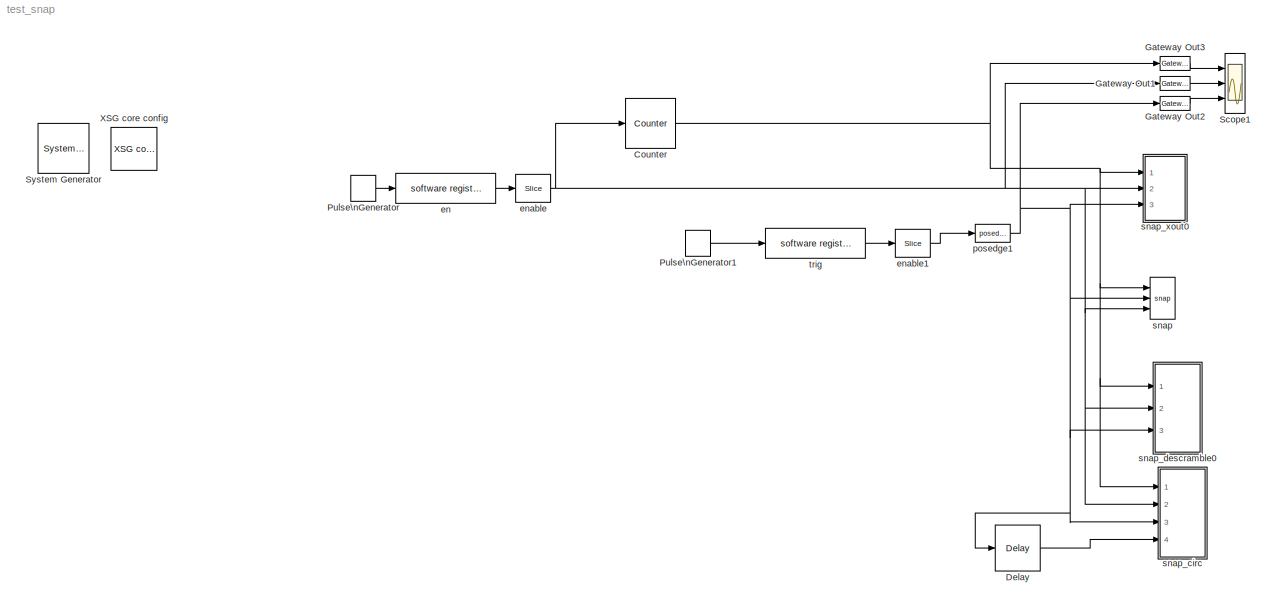
MODEL test_snap
KIND model
BLOCK [Reference]  System Generator  REF=xbsIndex_r3/ System Generator
  AttributesFormatString = System\\nGenerator
  Ports = []
  ShowPortLabels = on
  SourceBlock = xbsIndex_r3/ System Generator
  SourceType = Xilinx System Generator
  Tag = genX
  UserData = DataTag0
  UserDataPersistent = on
  core_generation = According to Block Masks
  dbl_ovrd = According to Block Masks
  deprecated_control = off
  directory = ./cn_b_2x_128w_8a_r307a/sysgen
  eval_field = 0
  incr_netlist = off
  package = ff1704
  part = xc2vp70
  run_coregen = off
  simulink_period = 1
  speed = -7
  synthesis_tool = XST
  sysclk_period = 4.878
  testbench = off
  trim_vbits = Everywhere in SubSystem
  xilinxfamily = Virtex2P
BLOCK [Reference] Counter  REF=xbsIndex_r3/Counter
  Ports = [1, 1]
  SourceBlock = xbsIndex_r3/Counter
  SourceType = Xilinx Counter Block
  arith_type = Unsigned
  bin_pt = 0
  cnt_by_val = 1
  cnt_to = Inf
  cnt_type = Free Running
  dbl_ovrd = off
  en = on
  explicit_period = on
  gen_core = off
  load_pin = off
  n_bits = 128
  operation = Up
  period = 1
  rst = off
  show_param = off
  start_count = 0
  use_rpm = on
  xl_area = [0, 0, 0, 0, 0, 0, 0]
  xl_use_area = off
BLOCK [Reference] Delay  REF=xbsIndex_r3/Delay
  Ports = [1, 1]
  SourceBlock = xbsIndex_r3/Delay
  SourceType = Xilinx Delay Block
  accept_only_valid = off
  dbl_ovrd = off
  en = off
  explicit_period = off
  init_zero = on
  latency = 5200
  period = 1
  reg_retiming = off
  show_param = off
  xl_area = [0, 0, 0, 0, 0, 0, 0]
  xl_use_area = off
BLOCK [Reference] Gateway Out1  REF=xbsIndex_r3/Gateway Out
  LOCs = {}
  Ports = [1, 1]
  SourceBlock = xbsIndex_r3/Gateway Out
  SourceType = Xilinx Gateway Out
  arith_type = Boolean
  bin_pt = 6
  hdl_port = off
  locs_specified = off
  nbits = 8
  needs_fixed_name = off
  output_type = Double
  overflow = Wrap
  quantization = Truncate
  show_param = off
  timing_constraint = None
  xl_area = [0, 0, 0, 0, 0, 0, 0]
  xl_use_area = off
BLOCK [Reference] Gateway Out2  REF=xbsIndex_r3/Gateway Out
  LOCs = {}
  Ports = [1, 1]
  SourceBlock = xbsIndex_r3/Gateway Out
  SourceType = Xilinx Gateway Out
  arith_type = Boolean
  bin_pt = 6
  hdl_port = off
  locs_specified = off
  nbits = 8
  needs_fixed_name = off
  output_type = Double
  overflow = Wrap
  quantization = Truncate
  show_param = off
  timing_constraint = None
  xl_area = [0, 0, 0, 0, 0, 0, 0]
  xl_use_area = off
BLOCK [Reference] Gateway Out3  REF=xbsIndex_r3/Gateway Out
  LOCs = {}
  Ports = [1, 1]
  SourceBlock = xbsIndex_r3/Gateway Out
  SourceType = Xilinx Gateway Out
  arith_type = Boolean
  bin_pt = 6
  hdl_port = off
  locs_specified = off
  nbits = 8
  needs_fixed_name = off
  output_type = Double
  overflow = Wrap
  quantization = Truncate
  show_param = off
  timing_constraint = None
  xl_area = [0, 0, 0, 0, 0, 0, 0]
  xl_use_area = off
BLOCK [DiscretePulseGenerator] Pulse\nGenerator
  Period = 1
  Ports = [0, 1]
BLOCK [DiscretePulseGenerator] Pulse\nGenerator1
  Period = 40
  PhaseDelay = 5
  Ports = [0, 1]
  PulseWidth = 2
BLOCK [Scope] Scope1
  DataFormat = StructureWithTime
  LimitDataPoints = off
  NumInputPorts = 3
  Ports = [3]
  YMax = 300648000~110~1
  YMin = 272014000~0~0
  ZoomMode = yonly
BLOCK [Reference] XSG core config  REF=xps_library/XSG core config  (lib defined in mdl_00b5cec29cd0, mdl_02ab6ecaa3d1, +5 more)
  Ports = []
  ShowPortLabels = on
  SourceBlock = xps_library/XSG core config
  SourceType = xsg core config
  Tag = xps:xsg
  clk_rate = 205
  clk_src = sys_clk2x
  gpio_clk_bit_index = 0
  gpio_clk_io_group = iBOB:sma
  hw_sys = BEE2_usr
  ibob_linux = off
  mpc_type = powerpc405
  sample_period = 1
  synthesis_tool = XST
BLOCK [Reference] en  REF=xps_library/software register  (lib defined in mdl_00b5cec29cd0, mdl_02ab6ecaa3d1, +5 more)
  Ports = [1, 1]
  ShowPortLabels = on
  SourceBlock = xps_library/software register
  Tag = xps:sw_reg
  arith_type = Unsigned
  bin_pt = 0
  bitwidth = 32
  gw_name = test_snap_en_user_data_out
  io_dir = From Processor
  sample_period = 1
BLOCK [Reference] enable  REF=xbsIndex_r3/Slice
  Ports = [1, 1]
  SourceBlock = xbsIndex_r3/Slice
  SourceType = Xilinx Slice Block
  base0 = LSB of Input
  base1 = LSB of Input
  bit0 = 0
  bit1 = 0
  boolean_output = on
  dbl_ovrd = off
  explicit_period = off
  mode = Lower Bit Location + Width
  nbits = 1
  period = 1
BLOCK [Reference] enable1  REF=xbsIndex_r3/Slice
  Ports = [1, 1]
  SourceBlock = xbsIndex_r3/Slice
  SourceType = Xilinx Slice Block
  base0 = LSB of Input
  base1 = LSB of Input
  bit0 = 0
  bit1 = 0
  boolean_output = on
  dbl_ovrd = off
  explicit_period = off
  mode = Lower Bit Location + Width
  nbits = 1
  period = 1
BLOCK [Reference] posedge1  REF=casper_library/Misc/posedge  (lib defined in mdl_138b2fc3435f, mdl_4ed325b712b3, +2 more)
  Ports = [1, 1]
  ShowPortLabels = on
  SourceBlock = casper_library/Misc/posedge
  SourceType = posedge
  Tag = Rising Edge Detector
BLOCK [Reference] snap  REF=casper_library/Scopes/snap  (lib defined in mdl_138b2fc3435f, mdl_4ed325b712b3, +2 more)
  Ports = [3]
  ShowPortLabels = on
  SourceBlock = casper_library/Scopes/snap
  SourceType = snap
  nsamples = 11
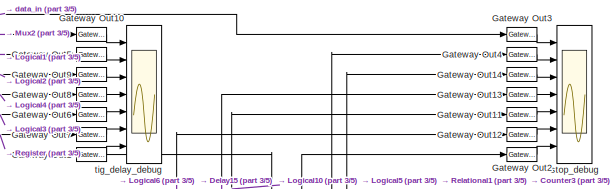
[diagram: snap_circ - part 1/5, top right region]
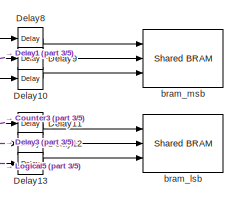
[diagram: snap_circ - part 2/5, middle right region]
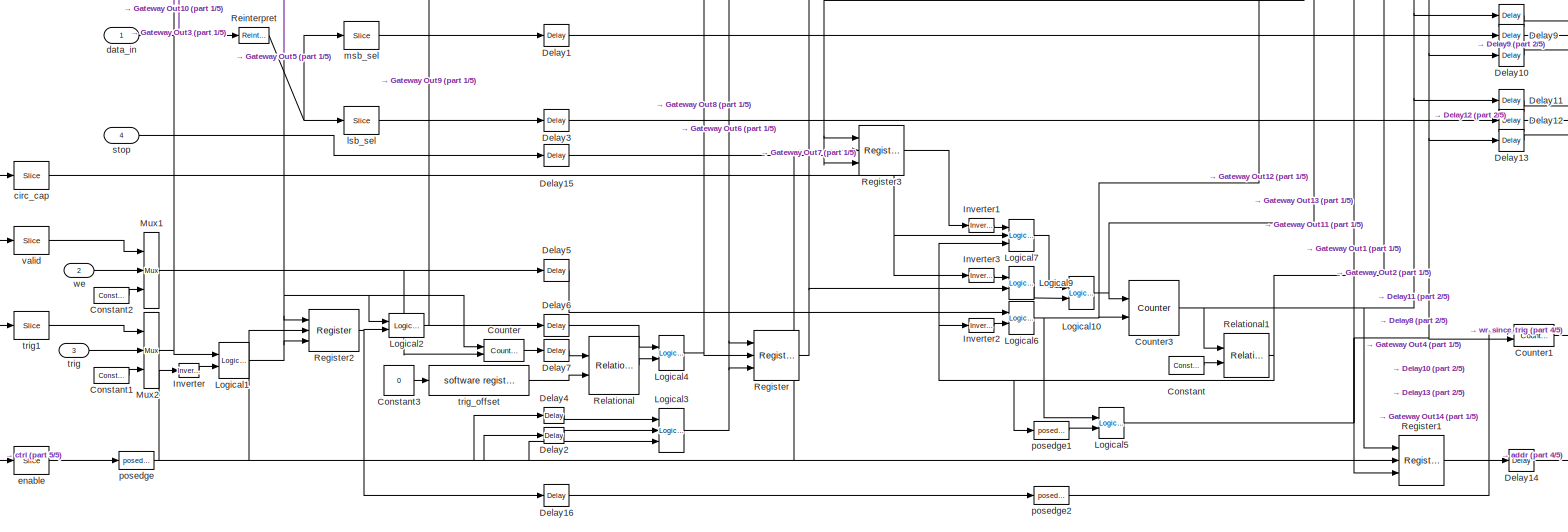
[diagram: snap_circ - part 3/5, full width, middle band]
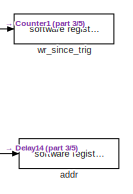
[diagram: snap_circ - part 4/5, bottom right region]
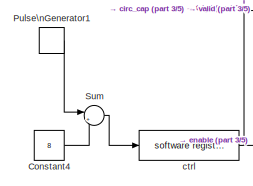
[diagram: snap_circ - part 5/5, bottom left region]
BLOCK [SubSystem] snap_circ
  MaskEnableString = on
  MaskIconFrame = on
  MaskIconOpaque = on
  MaskIconRotate = none
  MaskIconUnits = autoscale
  MaskPromptString = Number of Samples (2^?)
  MaskStyleString = edit
  MaskToolTipString = on
  MaskTunableValueString = on
  MaskValueString = 11
  MaskVariables = nsamples=@1;
  MaskVisibilityString = on
  MinAlgLoopOccurrences = off
  Ports = [4]
  RTWSystemCode = Auto
  TreatAsAtomicUnit = off
BLOCK [Reference] snap_circ/Constant  REF=xbsIndex_r3/Constant
  Ports = [0, 1]
  SourceBlock = xbsIndex_r3/Constant
  SourceType = Xilinx Constant Block
  arith_type = Unsigned
  bin_pt = 0
  carry = CIN
  const = (2^nsamples)-1
  dbl_ovrd = off
  equ = P=C
  explicit_period = off
  inp1 = P
  inp2 = PCIN>>17
  iostate = 0
  n_bits = nsamples
  opr = +
  opselect = C
  period = 1
BLOCK [Reference] snap_circ/Constant1  REF=xbsIndex_r3/Constant
  Ports = [0, 1]
  SourceBlock = xbsIndex_r3/Constant
  SourceType = Xilinx Constant Block
  arith_type = Boolean
  bin_pt = 0
  carry = CIN
  const = 1
  dbl_ovrd = off
  equ = P=C
  explicit_period = on
  inp1 = P
  inp2 = PCIN>>17
  iostate = 0
  n_bits = 1
  opr = +
  opselect = C
  period = 1
BLOCK [Reference] snap_circ/Constant2  REF=xbsIndex_r3/Constant
  Ports = [0, 1]
  SourceBlock = xbsIndex_r3/Constant
  SourceType = Xilinx Constant Block
  arith_type = Boolean
  bin_pt = 0
  carry = CIN
  const = 1
  dbl_ovrd = off
  equ = P=C
  explicit_period = on
  inp1 = P
  inp2 = PCIN>>17
  iostate = 0
  n_bits = 1
  opr = +
  opselect = C
  period = 1
BLOCK [Constant] snap_circ/Constant3
  Value = 0
BLOCK [Constant] snap_circ/Constant4
  Value = 8
BLOCK [Reference] snap_circ/Counter  REF=xbsIndex_r3/Counter
  Ports = [2, 1]
  SourceBlock = xbsIndex_r3/Counter
  SourceType = Xilinx Counter Block
  arith_type = Unsigned
  bin_pt = 0
  cnt_by_val = 1
  cnt_to = Inf
  cnt_type = Free Running
  dbl_ovrd = off
  en = on
  explicit_period = on
  gen_core = off
  load_pin = off
  n_bits = 32
  operation = Up
  period = 1
  rst = on
  show_param = off
  start_count = 1
  use_rpm = on
  xl_area = [0, 0, 0, 0, 0, 0, 0]
  xl_use_area = off
BLOCK [Reference] snap_circ/Counter1  REF=xbsIndex_r3/Counter
  Ports = [2, 1]
  SourceBlock = xbsIndex_r3/Counter
  SourceType = Xilinx Counter Block
  arith_type = Unsigned
  bin_pt = 0
  cnt_by_val = 1
  cnt_to = Inf
  cnt_type = Free Running
  dbl_ovrd = off
  en = on
  explicit_period = on
  gen_core = off
  load_pin = off
  n_bits = 32
  operation = Up
  period = 1
  rst = on
  show_param = off
  start_count = 1
  use_rpm = on
  xl_area = [0, 0, 0, 0, 0, 0, 0]
  xl_use_area = off
BLOCK [Reference] snap_circ/Counter3  REF=xbsIndex_r3/Counter
  Ports = [2, 1]
  SourceBlock = xbsIndex_r3/Counter
  SourceType = Xilinx Counter Block
  arith_type = Unsigned
  bin_pt = 0
  cnt_by_val = 1
  cnt_to = (2^nsamples)-1
  cnt_type = Count Limited
  dbl_ovrd = off
  en = on
  explicit_period = on
  gen_core = off
  load_pin = off
  n_bits = nsamples
  operation = Up
  period = 1
  rst = on
  show_param = off
  start_count = 0
  use_rpm = on
  xl_area = [0, 0, 0, 0, 0, 0, 0]
  xl_use_area = off
BLOCK [Reference] snap_circ/Delay1  REF=xbsIndex_r3/Delay
  Ports = [1, 1]
  SourceBlock = xbsIndex_r3/Delay
  SourceType = Xilinx Delay Block
  accept_only_valid = off
  dbl_ovrd = off
  en = off
  explicit_period = on
  init_zero = on
  latency = 1
  period = 1
  reg_retiming = on
  show_param = off
  xl_area = [0, 0, 0, 0, 0, 0, 0]
  xl_use_area = off
BLOCK [Reference] snap_circ/Delay10  REF=xbsIndex_r3/Delay
  Ports = [1, 1]
  SourceBlock = xbsIndex_r3/Delay
  SourceType = Xilinx Delay Block
  accept_only_valid = off
  dbl_ovrd = off
  en = off
  explicit_period = on
  init_zero = on
  latency = 1
  period = 1
  reg_retiming = on
  show_param = off
  xl_area = [0, 0, 0, 0, 0, 0, 0]
  xl_use_area = off
BLOCK [Reference] snap_circ/Delay11  REF=xbsIndex_r3/Delay
  Ports = [1, 1]
  SourceBlock = xbsIndex_r3/Delay
  SourceType = Xilinx Delay Block
  accept_only_valid = off
  dbl_ovrd = off
  en = off
  explicit_period = on
  init_zero = on
  latency = 1
  period = 1
  reg_retiming = on
  show_param = off
  xl_area = [0, 0, 0, 0, 0, 0, 0]
  xl_use_area = off
BLOCK [Reference] snap_circ/Delay12  REF=xbsIndex_r3/Delay
  Ports = [1, 1]
  SourceBlock = xbsIndex_r3/Delay
  SourceType = Xilinx Delay Block
  accept_only_valid = off
  dbl_ovrd = off
  en = off
  explicit_period = on
  init_zero = on
  latency = 1
  period = 1
  reg_retiming = on
  show_param = off
  xl_area = [0, 0, 0, 0, 0, 0, 0]
  xl_use_area = off
BLOCK [Reference] snap_circ/Delay13  REF=xbsIndex_r3/Delay
  Ports = [1, 1]
  SourceBlock = xbsIndex_r3/Delay
  SourceType = Xilinx Delay Block
  accept_only_valid = off
  dbl_ovrd = off
  en = off
  explicit_period = on
  init_zero = on
  latency = 1
  period = 1
  reg_retiming = on
  show_param = off
  xl_area = [0, 0, 0, 0, 0, 0, 0]
  xl_use_area = off
BLOCK [Reference] snap_circ/Delay14  REF=xbsIndex_r3/Delay
  Ports = [1, 1]
  SourceBlock = xbsIndex_r3/Delay
  SourceType = Xilinx Delay Block
  accept_only_valid = off
  dbl_ovrd = off
  en = off
  explicit_period = on
  init_zero = on
  latency = 1
  period = 1
  reg_retiming = on
  show_param = off
  xl_area = [0, 0, 0, 0, 0, 0, 0]
  xl_use_area = off
BLOCK [Reference] snap_circ/Delay15  REF=xbsIndex_r3/Delay
  Ports = [1, 1]
  SourceBlock = xbsIndex_r3/Delay
  SourceType = Xilinx Delay Block
  accept_only_valid = off
  dbl_ovrd = off
  en = off
  explicit_period = on
  init_zero = on
  latency = 1
  period = 1
  reg_retiming = on
  show_param = off
  xl_area = [0, 0, 0, 0, 0, 0, 0]
  xl_use_area = off
BLOCK [Reference] snap_circ/Delay16  REF=xbsIndex_r3/Delay
  Ports = [1, 1]
  SourceBlock = xbsIndex_r3/Delay
  SourceType = Xilinx Delay Block
  accept_only_valid = off
  dbl_ovrd = off
  en = off
  explicit_period = on
  init_zero = on
  latency = 1
  period = 1
  reg_retiming = on
  show_param = off
  xl_area = [0, 0, 0, 0, 0, 0, 0]
  xl_use_area = off
BLOCK [Reference] snap_circ/Delay2  REF=xbsIndex_r3/Delay
  Ports = [1, 1]
  SourceBlock = xbsIndex_r3/Delay
  SourceType = Xilinx Delay Block
  accept_only_valid = off
  dbl_ovrd = off
  en = off
  explicit_period = on
  init_zero = on
  latency = 2
  period = 1
  reg_retiming = on
  show_param = off
  xl_area = [0, 0, 0, 0, 0, 0, 0]
  xl_use_area = off
BLOCK [Reference] snap_circ/Delay3  REF=xbsIndex_r3/Delay
  Ports = [1, 1]
  SourceBlock = xbsIndex_r3/Delay
  SourceType = Xilinx Delay Block
  accept_only_valid = off
  dbl_ovrd = off
  en = off
  explicit_period = on
  init_zero = on
  latency = 1
  period = 1
  reg_retiming = on
  show_param = off
  xl_area = [0, 0, 0, 0, 0, 0, 0]
  xl_use_area = off
BLOCK [Reference] snap_circ/Delay4  REF=xbsIndex_r3/Delay
  Ports = [1, 1]
  SourceBlock = xbsIndex_r3/Delay
  SourceType = Xilinx Delay Block
  accept_only_valid = off
  dbl_ovrd = off
  en = off
  explicit_period = on
  init_zero = on
  latency = 1
  period = 1
  reg_retiming = on
  show_param = off
  xl_area = [0, 0, 0, 0, 0, 0, 0]
  xl_use_area = off
BLOCK [Reference] snap_circ/Delay5  REF=xbsIndex_r3/Delay
  Ports = [1, 1]
  SourceBlock = xbsIndex_r3/Delay
  SourceType = Xilinx Delay Block
  accept_only_valid = off
  dbl_ovrd = off
  en = off
  explicit_period = on
  init_zero = on
  latency = 1
  period = 1
  reg_retiming = on
  show_param = off
  xl_area = [0, 0, 0, 0, 0, 0, 0]
  xl_use_area = off
BLOCK [Reference] snap_circ/Delay6  REF=xbsIndex_r3/Delay
  Ports = [1, 1]
  SourceBlock = xbsIndex_r3/Delay
  SourceType = Xilinx Delay Block
  accept_only_valid = off
  dbl_ovrd = off
  en = off
  explicit_period = on
  init_zero = on
  latency = 1
  period = 1
  reg_retiming = on
  show_param = off
  xl_area = [0, 0, 0, 0, 0, 0, 0]
  xl_use_area = off
BLOCK [Reference] snap_circ/Delay7  REF=xbsIndex_r3/Delay
  Ports = [1, 1]
  SourceBlock = xbsIndex_r3/Delay
  SourceType = Xilinx Delay Block
  accept_only_valid = off
  dbl_ovrd = off
  en = off
  explicit_period = on
  init_zero = on
  latency = 1
  period = 1
  reg_retiming = on
  show_param = off
  xl_area = [0, 0, 0, 0, 0, 0, 0]
  xl_use_area = off
BLOCK [Reference] snap_circ/Delay8  REF=xbsIndex_r3/Delay
  Ports = [1, 1]
  SourceBlock = xbsIndex_r3/Delay
  SourceType = Xilinx Delay Block
  accept_only_valid = off
  dbl_ovrd = off
  en = off
  explicit_period = on
  init_zero = on
  latency = 1
  period = 1
  reg_retiming = on
  show_param = off
  xl_area = [0, 0, 0, 0, 0, 0, 0]
  xl_use_area = off
BLOCK [Reference] snap_circ/Delay9  REF=xbsIndex_r3/Delay
  Ports = [1, 1]
  SourceBlock = xbsIndex_r3/Delay
  SourceType = Xilinx Delay Block
  accept_only_valid = off
  dbl_ovrd = off
  en = off
  explicit_period = on
  init_zero = on
  latency = 1
  period = 1
  reg_retiming = on
  show_param = off
  xl_area = [0, 0, 0, 0, 0, 0, 0]
  xl_use_area = off
BLOCK [Reference] snap_circ/Gateway Out1  REF=xbsIndex_r3/Gateway Out
  LOCs = {}
  Ports = [1, 1]
  SourceBlock = xbsIndex_r3/Gateway Out
  SourceType = Xilinx Gateway Out
  arith_type = Boolean
  bin_pt = 6
  hdl_port = off
  locs_specified = off
  nbits = 8
  needs_fixed_name = off
  output_type = Double
  overflow = Wrap
  quantization = Truncate
  show_param = off
  timing_constraint = None
  xl_area = [0, 0, 0, 0, 0, 0, 0]
  xl_use_area = off
BLOCK [Reference] snap_circ/Gateway Out10  REF=xbsIndex_r3/Gateway Out
  LOCs = {}
  Ports = [1, 1]
  SourceBlock = xbsIndex_r3/Gateway Out
  SourceType = Xilinx Gateway Out
  arith_type = Boolean
  bin_pt = 6
  hdl_port = off
  locs_specified = off
  nbits = 8
  needs_fixed_name = off
  output_type = Double
  overflow = Wrap
  quantization = Truncate
  show_param = off
  timing_constraint = None
  xl_area = [0, 0, 0, 0, 0, 0, 0]
  xl_use_area = off
BLOCK [Reference] snap_circ/Gateway Out11  REF=xbsIndex_r3/Gateway Out
  LOCs = {}
  Ports = [1, 1]
  SourceBlock = xbsIndex_r3/Gateway Out
  SourceType = Xilinx Gateway Out
  arith_type = Boolean
  bin_pt = 6
  hdl_port = off
  locs_specified = off
  nbits = 8
  needs_fixed_name = off
  output_type = Double
  overflow = Wrap
  quantization = Truncate
  show_param = off
  timing_constraint = None
  xl_area = [0, 0, 0, 0, 0, 0, 0]
  xl_use_area = off
BLOCK [Reference] snap_circ/Gateway Out12  REF=xbsIndex_r3/Gateway Out
  LOCs = {}
  Ports = [1, 1]
  SourceBlock = xbsIndex_r3/Gateway Out
  SourceType = Xilinx Gateway Out
  arith_type = Boolean
  bin_pt = 6
  hdl_port = off
  locs_specified = off
  nbits = 8
  needs_fixed_name = off
  output_type = Double
  overflow = Wrap
  quantization = Truncate
  show_param = off
  timing_constraint = None
  xl_area = [0, 0, 0, 0, 0, 0, 0]
  xl_use_area = off
BLOCK [Reference] snap_circ/Gateway Out13  REF=xbsIndex_r3/Gateway Out
  LOCs = {}
  Ports = [1, 1]
  SourceBlock = xbsIndex_r3/Gateway Out
  SourceType = Xilinx Gateway Out
  arith_type = Boolean
  bin_pt = 6
  hdl_port = off
  locs_specified = off
  nbits = 8
  needs_fixed_name = off
  output_type = Double
  overflow = Wrap
  quantization = Truncate
  show_param = off
  timing_constraint = None
  xl_area = [0, 0, 0, 0, 0, 0, 0]
  xl_use_area = off
BLOCK [Reference] snap_circ/Gateway Out14  REF=xbsIndex_r3/Gateway Out
  LOCs = {}
  Ports = [1, 1]
  SourceBlock = xbsIndex_r3/Gateway Out
  SourceType = Xilinx Gateway Out
  arith_type = Boolean
  bin_pt = 6
  hdl_port = off
  locs_specified = off
  nbits = 8
  needs_fixed_name = off
  output_type = Double
  overflow = Wrap
  quantization = Truncate
  show_param = off
  timing_constraint = None
  xl_area = [0, 0, 0, 0, 0, 0, 0]
  xl_use_area = off
BLOCK [Reference] snap_circ/Gateway Out2  REF=xbsIndex_r3/Gateway Out
  LOCs = {}
  Ports = [1, 1]
  SourceBlock = xbsIndex_r3/Gateway Out
  SourceType = Xilinx Gateway Out
  arith_type = Boolean
  bin_pt = 6
  hdl_port = off
  locs_specified = off
  nbits = 8
  needs_fixed_name = off
  output_type = Double
  overflow = Wrap
  quantization = Truncate
  show_param = off
  timing_constraint = None
  xl_area = [0, 0, 0, 0, 0, 0, 0]
  xl_use_area = off
BLOCK [Reference] snap_circ/Gateway Out3  REF=xbsIndex_r3/Gateway Out
  LOCs = {}
  Ports = [1, 1]
  SourceBlock = xbsIndex_r3/Gateway Out
  SourceType = Xilinx Gateway Out
  arith_type = Boolean
  bin_pt = 6
  hdl_port = off
  locs_specified = off
  nbits = 8
  needs_fixed_name = off
  output_type = Double
  overflow = Wrap
  quantization = Truncate
  show_param = off
  timing_constraint = None
  xl_area = [0, 0, 0, 0, 0, 0, 0]
  xl_use_area = off
BLOCK [Reference] snap_circ/Gateway Out4  REF=xbsIndex_r3/Gateway Out
  LOCs = {}
  Ports = [1, 1]
  SourceBlock = xbsIndex_r3/Gateway Out
  SourceType = Xilinx Gateway Out
  arith_type = Boolean
  bin_pt = 6
  hdl_port = off
  locs_specified = off
  nbits = 8
  needs_fixed_name = off
  output_type = Double
  overflow = Wrap
  quantization = Truncate
  show_param = off
  timing_constraint = None
  xl_area = [0, 0, 0, 0, 0, 0, 0]
  xl_use_area = off
BLOCK [Reference] snap_circ/Gateway Out5  REF=xbsIndex_r3/Gateway Out
  LOCs = {}
  Ports = [1, 1]
  SourceBlock = xbsIndex_r3/Gateway Out
  SourceType = Xilinx Gateway Out
  arith_type = Boolean
  bin_pt = 6
  hdl_port = off
  locs_specified = off
  nbits = 8
  needs_fixed_name = off
  output_type = Double
  overflow = Wrap
  quantization = Truncate
  show_param = off
  timing_constraint = None
  xl_area = [0, 0, 0, 0, 0, 0, 0]
  xl_use_area = off
BLOCK [Reference] snap_circ/Gateway Out6  REF=xbsIndex_r3/Gateway Out
  LOCs = {}
  Ports = [1, 1]
  SourceBlock = xbsIndex_r3/Gateway Out
  SourceType = Xilinx Gateway Out
  arith_type = Boolean
  bin_pt = 6
  hdl_port = off
  locs_specified = off
  nbits = 8
  needs_fixed_name = off
  output_type = Double
  overflow = Wrap
  quantization = Truncate
  show_param = off
  timing_constraint = None
  xl_area = [0, 0, 0, 0, 0, 0, 0]
  xl_use_area = off
BLOCK [Reference] snap_circ/Gateway Out7  REF=xbsIndex_r3/Gateway Out
  LOCs = {}
  Ports = [1, 1]
  SourceBlock = xbsIndex_r3/Gateway Out
  SourceType = Xilinx Gateway Out
  arith_type = Boolean
  bin_pt = 6
  hdl_port = off
  locs_specified = off
  nbits = 8
  needs_fixed_name = off
  output_type = Double
  overflow = Wrap
  quantization = Truncate
  show_param = off
  timing_constraint = None
  xl_area = [0, 0, 0, 0, 0, 0, 0]
  xl_use_area = off
BLOCK [Reference] snap_circ/Gateway Out8  REF=xbsIndex_r3/Gateway Out
  LOCs = {}
  Ports = [1, 1]
  SourceBlock = xbsIndex_r3/Gateway Out
  SourceType = Xilinx Gateway Out
  arith_type = Boolean
  bin_pt = 6
  hdl_port = off
  locs_specified = off
  nbits = 8
  needs_fixed_name = off
  output_type = Double
  overflow = Wrap
  quantization = Truncate
  show_param = off
  timing_constraint = None
  xl_area = [0, 0, 0, 0, 0, 0, 0]
  xl_use_area = off
BLOCK [Reference] snap_circ/Gateway Out9  REF=xbsIndex_r3/Gateway Out
  LOCs = {}
  Ports = [1, 1]
  SourceBlock = xbsIndex_r3/Gateway Out
  SourceType = Xilinx Gateway Out
  arith_type = Boolean
  bin_pt = 6
  hdl_port = off
  locs_specified = off
  nbits = 8
  needs_fixed_name = off
  output_type = Double
  overflow = Wrap
  quantization = Truncate
  show_param = off
  timing_constraint = None
  xl_area = [0, 0, 0, 0, 0, 0, 0]
  xl_use_area = off
BLOCK [Reference] snap_circ/Inverter  REF=xbsIndex_r3/Inverter
  Ports = [1, 1]
  SourceBlock = xbsIndex_r3/Inverter
  SourceType = Xilinx Inverter
  dbl_ovrd = off
  en = off
  explicit_period = off
  latency = 0
  period = 1
  show_param = off
  xl_area = [0, 0, 0, 0, 0, 0, 0]
  xl_use_area = off
BLOCK [Reference] snap_circ/Inverter1  REF=xbsIndex_r3/Inverter
  Ports = [1, 1]
  SourceBlock = xbsIndex_r3/Inverter
  SourceType = Xilinx Inverter
  dbl_ovrd = off
  en = off
  explicit_period = off
  latency = 0
  period = 1
  show_param = off
  xl_area = [0, 0, 0, 0, 0, 0, 0]
  xl_use_area = off
BLOCK [Reference] snap_circ/Inverter2  REF=xbsIndex_r3/Inverter
  Ports = [1, 1]
  SourceBlock = xbsIndex_r3/Inverter
  SourceType = Xilinx Inverter
  dbl_ovrd = off
  en = off
  explicit_period = off
  latency = 0
  period = 1
  show_param = off
  xl_area = [0, 0, 0, 0, 0, 0, 0]
  xl_use_area = off
BLOCK [Reference] snap_circ/Inverter3  REF=xbsIndex_r3/Inverter
  Ports = [1, 1]
  SourceBlock = xbsIndex_r3/Inverter
  SourceType = Xilinx Inverter
  dbl_ovrd = off
  en = off
  explicit_period = off
  latency = 0
  period = 1
  show_param = off
  xl_area = [0, 0, 0, 0, 0, 0, 0]
  xl_use_area = off
BLOCK [Reference] snap_circ/Logical1  REF=xbsIndex_r3/Logical
  Ports = [2, 1]
  SourceBlock = xbsIndex_r3/Logical
  SourceType = Xilinx Logical Block
  align_bp = on
  arith_type = Unsigned
  bin_pt = 2
  dbl_ovrd = off
  en = off
  explicit_period = off
  inputs = 2
  latency = 0
  logical_function = AND
  n_bits = 8
  period = 1
  precision = Full
  show_param = off
  xl_area = [0, 0, 0, 0, 0, 0, 0]
  xl_use_area = off
BLOCK [Reference] snap_circ/Logical10  REF=xbsIndex_r3/Logical
  Ports = [2, 1]
  SourceBlock = xbsIndex_r3/Logical
  SourceType = Xilinx Logical Block
  align_bp = on
  arith_type = Unsigned
  bin_pt = 2
  dbl_ovrd = off
  en = off
  explicit_period = off
  inputs = 2
  latency = 0
  logical_function = OR
  n_bits = 8
  period = 1
  precision = Full
  show_param = off
  xl_area = [0, 0, 0, 0, 0, 0, 0]
  xl_use_area = off
BLOCK [Reference] snap_circ/Logical2  REF=xbsIndex_r3/Logical
  Ports = [2, 1]
  SourceBlock = xbsIndex_r3/Logical
  SourceType = Xilinx Logical Block
  align_bp = on
  arith_type = Unsigned
  bin_pt = 2
  dbl_ovrd = off
  en = off
  explicit_period = on
  inputs = 2
  latency = 0
  logical_function = OR
  n_bits = 8
  period = 1
  precision = Full
  show_param = off
  xl_area = [0, 0, 0, 0, 0, 0, 0]
  xl_use_area = off
BLOCK [Reference] snap_circ/Logical3  REF=xbsIndex_r3/Logical
  Ports = [3, 1]
  SourceBlock = xbsIndex_r3/Logical
  SourceType = Xilinx Logical Block
  align_bp = on
  arith_type = Unsigned
  bin_pt = 2
  dbl_ovrd = off
  en = off
  explicit_period = on
  inputs = 3
  latency = 0
  logical_function = OR
  n_bits = 8
  period = 1
  precision = Full
  show_param = off
  xl_area = [0, 0, 0, 0, 0, 0, 0]
  xl_use_area = off
BLOCK [Reference] snap_circ/Logical4  REF=xbsIndex_r3/Logical
  Ports = [2, 1]
  SourceBlock = xbsIndex_r3/Logical
  SourceType = Xilinx Logical Block
  align_bp = on
  arith_type = Unsigned
  bin_pt = 2
  dbl_ovrd = off
  en = off
  explicit_period = on
  inputs = 2
  latency = 0
  logical_function = AND
  n_bits = 8
  period = 1
  precision = Full
  show_param = off
  xl_area = [0, 0, 0, 0, 0, 0, 0]
  xl_use_area = off
BLOCK [Reference] snap_circ/Logical5  REF=xbsIndex_r3/Logical
  Ports = [2, 1]
  SourceBlock = xbsIndex_r3/Logical
  SourceType = Xilinx Logical Block
  align_bp = on
  arith_type = Unsigned
  bin_pt = 2
  dbl_ovrd = off
  en = off
  explicit_period = off
  inputs = 2
  latency = 0
  logical_function = OR
  n_bits = 8
  period = 1
  precision = Full
  show_param = off
  xl_area = [0, 0, 0, 0, 0, 0, 0]
  xl_use_area = off
BLOCK [Reference] snap_circ/Logical6  REF=xbsIndex_r3/Logical
  Ports = [2, 1]
  SourceBlock = xbsIndex_r3/Logical
  SourceType = Xilinx Logical Block
  align_bp = on
  arith_type = Unsigned
  bin_pt = 2
  dbl_ovrd = off
  en = off
  explicit_period = off
  inputs = 2
  latency = 0
  logical_function = AND
  n_bits = 8
  period = 1
  precision = Full
  show_param = off
  xl_area = [0, 0, 0, 0, 0, 0, 0]
  xl_use_area = off
BLOCK [Reference] snap_circ/Logical7  REF=xbsIndex_r3/Logical
  Ports = [3, 1]
  SourceBlock = xbsIndex_r3/Logical
  SourceType = Xilinx Logical Block
  align_bp = on
  arith_type = Unsigned
  bin_pt = 2
  dbl_ovrd = off
  en = off
  explicit_period = off
  inputs = 3
  latency = 0
  logical_function = AND
  n_bits = 8
  period = 1
  precision = Full
  show_param = off
  xl_area = [0, 0, 0, 0, 0, 0, 0]
  xl_use_area = off
BLOCK [Reference] snap_circ/Logical9  REF=xbsIndex_r3/Logical
  Ports = [2, 1]
  SourceBlock = xbsIndex_r3/Logical
  SourceType = Xilinx Logical Block
  align_bp = on
  arith_type = Unsigned
  bin_pt = 2
  dbl_ovrd = off
  en = off
  explicit_period = off
  inputs = 2
  latency = 0
  logical_function = AND
  n_bits = 8
  period = 1
  precision = Full
  show_param = off
  xl_area = [0, 0, 0, 0, 0, 0, 0]
  xl_use_area = off
BLOCK [Reference] snap_circ/Mux1  REF=xbsIndex_r3/Mux
  Ports = [3, 1]
  SourceBlock = xbsIndex_r3/Mux
  SourceType = Xilinx Multiplexer Block
  arith_type = Signed  (2's comp)
  bin_pt = 2
  dbl_ovrd = off
  en = off
  explicit_period = off
  gen_core = off
  inputs = 2
  latency = 0
  mux_type = off
  n_bits = 8
  overflow = Wrap
  period = 1
  precision = Full
  quantization = Truncate
  show_param = off
  use_rpm = off
  xl_area = [0, 0, 0, 0, 0, 0, 0]
  xl_use_area = off
BLOCK [Reference] snap_circ/Mux2  REF=xbsIndex_r3/Mux
  Ports = [3, 1]
  SourceBlock = xbsIndex_r3/Mux
  SourceType = Xilinx Multiplexer Block
  arith_type = Signed  (2's comp)
  bin_pt = 2
  dbl_ovrd = off
  en = off
  explicit_period = off
  gen_core = off
  inputs = 2
  latency = 0
  mux_type = off
  n_bits = 8
  overflow = Wrap
  period = 1
  precision = Full
  quantization = Truncate
  show_param = off
  use_rpm = off
  xl_area = [0, 0, 0, 0, 0, 0, 0]
  xl_use_area = off
BLOCK [DiscretePulseGenerator] snap_circ/Pulse\nGenerator1
  Period = 4196
  Ports = [0, 1]
  PulseWidth = 2
BLOCK [Reference] snap_circ/Register  REF=xbsIndex_r3/Register
  Ports = [3, 1]
  SourceBlock = xbsIndex_r3/Register
  SourceType = Xilinx Register Block
  dbl_ovrd = off
  en = on
  explicit_period = off
  init = 0
  out_en = off
  period = 1
  reg_only_valid = off
  rst = on
  show_param = off
  xl_area = [0, 0, 0, 0, 0, 0, 0]
  xl_use_area = off
BLOCK [Reference] snap_circ/Register1  REF=xbsIndex_r3/Register
  Ports = [3, 1]
  SourceBlock = xbsIndex_r3/Register
  SourceType = Xilinx Register Block
  dbl_ovrd = off
  en = on
  explicit_period = off
  init = 0
  out_en = off
  period = 1
  reg_only_valid = off
  rst = on
  show_param = off
  xl_area = [0, 0, 0, 0, 0, 0, 0]
  xl_use_area = off
BLOCK [Reference] snap_circ/Register2  REF=xbsIndex_r3/Register
  Ports = [3, 1]
  SourceBlock = xbsIndex_r3/Register
  SourceType = Xilinx Register Block
  dbl_ovrd = off
  en = on
  explicit_period = off
  init = 0
  out_en = off
  period = 1
  reg_only_valid = off
  rst = on
  show_param = off
  xl_area = [0, 0, 0, 0, 0, 0, 0]
  xl_use_area = off
BLOCK [Reference] snap_circ/Register3  REF=xbsIndex_r3/Register
  Ports = [3, 1]
  SourceBlock = xbsIndex_r3/Register
  SourceType = Xilinx Register Block
  dbl_ovrd = off
  en = on
  explicit_period = off
  init = 0
  out_en = off
  period = 1
  reg_only_valid = off
  rst = on
  show_param = off
  xl_area = [0, 0, 0, 0, 0, 0, 0]
  xl_use_area = off
BLOCK [Reference] snap_circ/Reinterpret  REF=xbsIndex_r3/Reinterpret
  Ports = [1, 1]
  SourceBlock = xbsIndex_r3/Reinterpret
  SourceType = Xilinx Type Reinterpreting Block
  arith_type = Unsigned
  bin_pt = 0
  force_arith_type = on
  force_bin_pt = on
  force_valid = on
BLOCK [Reference] snap_circ/Relational  REF=xbsIndex_r3/Relational
  Ports = [2, 1]
  SourceBlock = xbsIndex_r3/Relational
  SourceType = Xilinx Relational Block
  dbl_ovrd = off
  en = off
  explicit_period = on
  latency = 0
  mode = a>=b
  period = 1
  show_param = off
  xl_area = [0, 0, 0, 0, 0, 0, 0]
  xl_use_area = off
BLOCK [Reference] snap_circ/Relational1  REF=xbsIndex_r3/Relational
  Ports = [2, 1]
  SourceBlock = xbsIndex_r3/Relational
  SourceType = Xilinx Relational Block
  dbl_ovrd = off
  en = off
  explicit_period = off
  latency = 0
  mode = a=b
  period = 1
  show_param = off
  xl_area = [0, 0, 0, 0, 0, 0, 0]
  xl_use_area = off
BLOCK [Sum] snap_circ/Sum
  IconShape = round
  InputSameDT = off
  Inputs = |++
  OutDataTypeMode = Inherit via internal rule
  Ports = [2, 1]
  SaturateOnIntegerOverflow = off
BLOCK [Reference] snap_circ/addr  REF=xps_library/software register  (lib defined in mdl_00b5cec29cd0, mdl_02ab6ecaa3d1, +5 more)
  Ports = [1, 1]
  ShowPortLabels = on
  SourceBlock = xps_library/software register
  Tag = xps:sw_reg
  arith_type = Unsigned
  bin_pt = 0
  bitwidth = 32
  gw_name = test_snap_snap_circ_addr_user_data_in
  io_dir = To Processor
  sample_period = 1
BLOCK [Reference] snap_circ/bram_lsb  REF=xps_library/Shared BRAM  (lib defined in mdl_00b5cec29cd0, mdl_02ab6ecaa3d1, +5 more)
  Ports = [3, 1]
  ShowPortLabels = on
  SourceBlock = xps_library/Shared BRAM
  Tag = xps:bram
  addr_width = nsamples
  arith_type = Unsigned
  data_bin_pt = 0
  data_width = 32
  init_vals = 0
  sample_rate = 1
BLOCK [Reference] snap_circ/bram_msb  REF=xps_library/Shared BRAM  (lib defined in mdl_00b5cec29cd0, mdl_02ab6ecaa3d1, +5 more)
  Ports = [3, 1]
  ShowPortLabels = on
  SourceBlock = xps_library/Shared BRAM
  Tag = xps:bram
  addr_width = nsamples
  arith_type = Unsigned
  data_bin_pt = 0
  data_width = 32
  init_vals = 0
  sample_rate = 1
BLOCK [Reference] snap_circ/circ_cap  REF=xbsIndex_r3/Slice
  Ports = [1, 1]
  SourceBlock = xbsIndex_r3/Slice
  SourceType = Xilinx Slice Block
  base0 = LSB of Input
  base1 = LSB of Input
  bit0 = 3
  bit1 = 0
  boolean_output = on
  dbl_ovrd = off
  explicit_period = off
  mode = Lower Bit Location + Width
  nbits = 1
  period = 1
BLOCK [Reference] snap_circ/ctrl  REF=xps_library/software register  (lib defined in mdl_00b5cec29cd0, mdl_02ab6ecaa3d1, +5 more)
  Ports = [1, 1]
  ShowPortLabels = on
  SourceBlock = xps_library/software register
  Tag = xps:sw_reg
  arith_type = Unsigned
  bin_pt = 0
  bitwidth = 32
  gw_name = test_snap_snap_circ_ctrl_user_data_out
  io_dir = From Processor
  sample_period = 1
BLOCK [Inport] snap_circ/data_in
  IconDisplay = Port number
  LatchInput = off
  Port = 1
BLOCK [Reference] snap_circ/enable  REF=xbsIndex_r3/Slice
  Ports = [1, 1]
  SourceBlock = xbsIndex_r3/Slice
  SourceType = Xilinx Slice Block
  base0 = LSB of Input
  base1 = LSB of Input
  bit0 = 0
  bit1 = 0
  boolean_output = on
  dbl_ovrd = off
  explicit_period = on
  mode = Lower Bit Location + Width
  nbits = 1
  period = 1
BLOCK [Reference] snap_circ/lsb_sel  REF=xbsIndex_r3/Slice
  Ports = [1, 1]
  SourceBlock = xbsIndex_r3/Slice
  SourceType = Xilinx Slice Block
  base0 = LSB of Input
  base1 = LSB of Input
  bit0 = 0
  bit1 = 0
  boolean_output = on
  dbl_ovrd = off
  explicit_period = on
  mode = Lower Bit Location + Width
  nbits = 32
  period = 1
BLOCK [Reference] snap_circ/msb_sel  REF=xbsIndex_r3/Slice
  Ports = [1, 1]
  SourceBlock = xbsIndex_r3/Slice
  SourceType = Xilinx Slice Block
  base0 = LSB of Input
  base1 = LSB of Input
  bit0 = 32
  bit1 = 0
  boolean_output = on
  dbl_ovrd = off
  explicit_period = on
  mode = Lower Bit Location + Width
  nbits = 32
  period = 1
BLOCK [Reference] snap_circ/posedge  REF=casper_library/Misc/posedge  (lib defined in mdl_138b2fc3435f, mdl_4ed325b712b3, +2 more)
  Ports = [1, 1]
  ShowPortLabels = on
  SourceBlock = casper_library/Misc/posedge
  SourceType = posedge
  Tag = Rising Edge Detector
BLOCK [Reference] snap_circ/posedge1  REF=casper_library/Misc/posedge  (lib defined in mdl_138b2fc3435f, mdl_4ed325b712b3, +2 more)
  Ports = [1, 1]
  ShowPortLabels = on
  SourceBlock = casper_library/Misc/posedge
  SourceType = posedge
  Tag = Rising Edge Detector
BLOCK [Reference] snap_circ/posedge2  REF=casper_library/Misc/posedge  (lib defined in mdl_138b2fc3435f, mdl_4ed325b712b3, +2 more)
  Ports = [1, 1]
  ShowPortLabels = on
  SourceBlock = casper_library/Misc/posedge
  SourceType = posedge
  Tag = Rising Edge Detector
BLOCK [Inport] snap_circ/stop
  IconDisplay = Port number
  LatchInput = off
  Port = 4
BLOCK [Scope] snap_circ/stop_debug
  DataFormat = StructureWithTime
  LimitDataPoints = off
  NumInputPorts = 7
  Ports = [7]
  SaveName = ScopeData4
  YMax = 300648000~110~1~5~5~5~5
  YMin = 272014000~0~0~-5~-5~-5~-5
  ZoomMode = yonly
BLOCK [Scope] snap_circ/tig_delay_debug
  DataFormat = StructureWithTime
  LimitDataPoints = off
  NumInputPorts = 7
  Ports = [7]
  SaveName = ScopeData3
  YMax = 3.00648e+008~110~1~5~5~5~5
  YMin = 2.72014e+008~0~0~-5~-5~-5~-5
  ZoomMode = xonly
BLOCK [Inport] snap_circ/trig
  IconDisplay = Port number
  LatchInput = off
  Port = 3
BLOCK [Reference] snap_circ/trig1  REF=xbsIndex_r3/Slice
  Ports = [1, 1]
  SourceBlock = xbsIndex_r3/Slice
  SourceType = Xilinx Slice Block
  base0 = LSB of Input
  base1 = LSB of Input
  bit0 = 1
  bit1 = 0
  boolean_output = on
  dbl_ovrd = off
  explicit_period = off
  mode = Lower Bit Location + Width
  nbits = 1
  period = 1
BLOCK [Reference] snap_circ/trig_offset  REF=xps_library/software register  (lib defined in mdl_00b5cec29cd0, mdl_02ab6ecaa3d1, +5 more)
  Ports = [1, 1]
  ShowPortLabels = on
  SourceBlock = xps_library/software register
  Tag = xps:sw_reg
  arith_type = Unsigned
  bin_pt = 0
  bitwidth = 32
  gw_name = test_snap_snap_circ_trig_offset_user_data_out
  io_dir = From Processor
  sample_period = 1
BLOCK [Reference] snap_circ/valid  REF=xbsIndex_r3/Slice
  Ports = [1, 1]
  SourceBlock = xbsIndex_r3/Slice
  SourceType = Xilinx Slice Block
  base0 = LSB of Input
  base1 = LSB of Input
  bit0 = 2
  bit1 = 0
  boolean_output = on
  dbl_ovrd = off
  explicit_period = off
  mode = Lower Bit Location + Width
  nbits = 1
  period = 1
BLOCK [Inport] snap_circ/we
  IconDisplay = Port number
  LatchInput = off
  Port = 2
BLOCK [Reference] snap_circ/wr_since_trig  REF=xps_library/software register  (lib defined in mdl_00b5cec29cd0, mdl_02ab6ecaa3d1, +5 more)
  Ports = [1, 1]
  ShowPortLabels = on
  SourceBlock = xps_library/software register
  Tag = xps:sw_reg
  arith_type = Unsigned
  bin_pt = 0
  bitwidth = 32
  gw_name = test_snap_snap_circ_addr_user_data_in
  io_dir = To Processor
  sample_period = 1
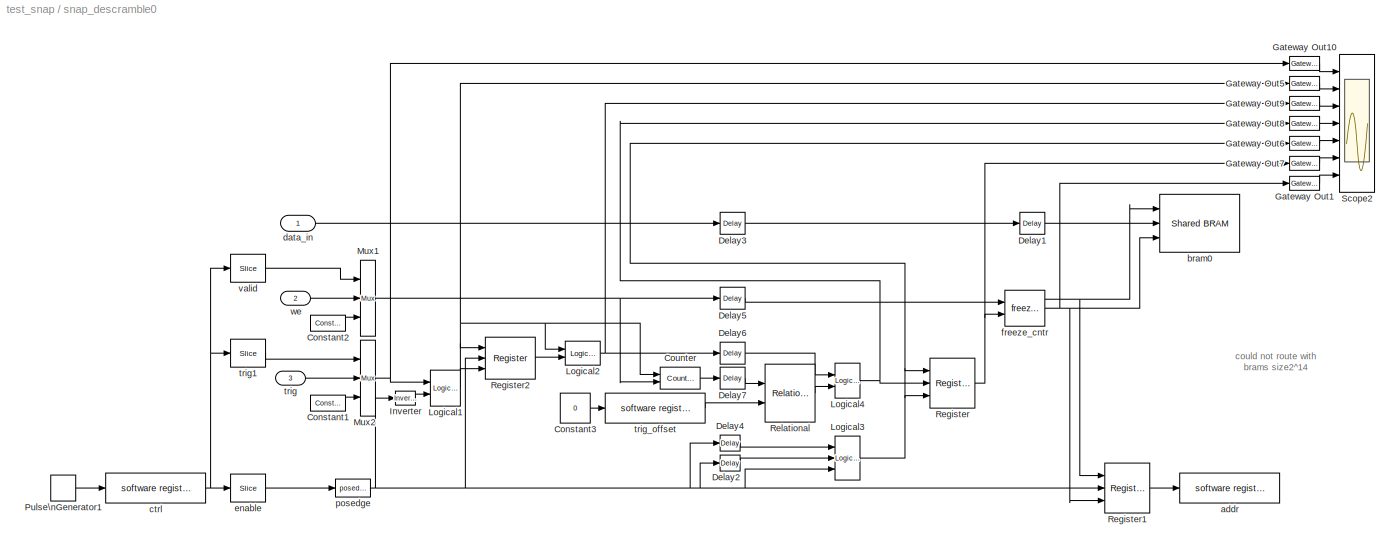
BLOCK [SubSystem] snap_descramble0
  MaskEnableString = on
  MaskIconFrame = on
  MaskIconOpaque = on
  MaskIconRotate = none
  MaskIconUnits = autoscale
  MaskPromptString = Number of Samples (2^?)
  MaskStyleString = edit
  MaskToolTipString = on
  MaskTunableValueString = on
  MaskValueString = 11
  MaskVariables = nsamples=@1;
  MaskVisibilityString = on
  MinAlgLoopOccurrences = off
  Ports = [3]
  RTWSystemCode = Auto
  TreatAsAtomicUnit = off
BLOCK [Reference] snap_descramble0/Constant1  REF=xbsIndex_r3/Constant
  Ports = [0, 1]
  SourceBlock = xbsIndex_r3/Constant
  SourceType = Xilinx Constant Block
  arith_type = Boolean
  bin_pt = 0
  carry = CIN
  const = 1
  dbl_ovrd = off
  equ = P=C
  explicit_period = on
  inp1 = P
  inp2 = PCIN>>17
  iostate = 0
  n_bits = 1
  opr = +
  opselect = C
  period = 1
BLOCK [Reference] snap_descramble0/Constant2  REF=xbsIndex_r3/Constant
  Ports = [0, 1]
  SourceBlock = xbsIndex_r3/Constant
  SourceType = Xilinx Constant Block
  arith_type = Boolean
  bin_pt = 0
  carry = CIN
  const = 1
  dbl_ovrd = off
  equ = P=C
  explicit_period = on
  inp1 = P
  inp2 = PCIN>>17
  iostate = 0
  n_bits = 1
  opr = +
  opselect = C
  period = 1
BLOCK [Constant] snap_descramble0/Constant3
  Value = 0
BLOCK [Reference] snap_descramble0/Counter  REF=xbsIndex_r3/Counter
  Ports = [2, 1]
  SourceBlock = xbsIndex_r3/Counter
  SourceType = Xilinx Counter Block
  arith_type = Unsigned
  bin_pt = 0
  cnt_by_val = 1
  cnt_to = Inf
  cnt_type = Free Running
  dbl_ovrd = off
  en = on
  explicit_period = on
  gen_core = off
  load_pin = off
  n_bits = 10
  operation = Up
  period = 1
  rst = on
  show_param = off
  start_count = 1
  use_rpm = on
  xl_area = [0, 0, 0, 0, 0, 0, 0]
  xl_use_area = off
BLOCK [Reference] snap_descramble0/Delay1  REF=xbsIndex_r3/Delay
  Ports = [1, 1]
  SourceBlock = xbsIndex_r3/Delay
  SourceType = Xilinx Delay Block
  accept_only_valid = off
  dbl_ovrd = off
  en = off
  explicit_period = on
  init_zero = on
  latency = 1
  period = 1
  reg_retiming = on
  show_param = off
  xl_area = [0, 0, 0, 0, 0, 0, 0]
  xl_use_area = off
BLOCK [Reference] snap_descramble0/Delay2  REF=xbsIndex_r3/Delay
  Ports = [1, 1]
  SourceBlock = xbsIndex_r3/Delay
  SourceType = Xilinx Delay Block
  accept_only_valid = off
  dbl_ovrd = off
  en = off
  explicit_period = on
  init_zero = on
  latency = 2
  period = 1
  reg_retiming = on
  show_param = off
  xl_area = [0, 0, 0, 0, 0, 0, 0]
  xl_use_area = off
BLOCK [Reference] snap_descramble0/Delay3  REF=xbsIndex_r3/Delay
  Ports = [1, 1]
  SourceBlock = xbsIndex_r3/Delay
  SourceType = Xilinx Delay Block
  accept_only_valid = off
  dbl_ovrd = off
  en = off
  explicit_period = on
  init_zero = on
  latency = 1
  period = 1
  reg_retiming = on
  show_param = off
  xl_area = [0, 0, 0, 0, 0, 0, 0]
  xl_use_area = off
BLOCK [Reference] snap_descramble0/Delay4  REF=xbsIndex_r3/Delay
  Ports = [1, 1]
  SourceBlock = xbsIndex_r3/Delay
  SourceType = Xilinx Delay Block
  accept_only_valid = off
  dbl_ovrd = off
  en = off
  explicit_period = on
  init_zero = on
  latency = 1
  period = 1
  reg_retiming = on
  show_param = off
  xl_area = [0, 0, 0, 0, 0, 0, 0]
  xl_use_area = off
BLOCK [Reference] snap_descramble0/Delay5  REF=xbsIndex_r3/Delay
  Ports = [1, 1]
  SourceBlock = xbsIndex_r3/Delay
  SourceType = Xilinx Delay Block
  accept_only_valid = off
  dbl_ovrd = off
  en = off
  explicit_period = on
  init_zero = on
  latency = 1
  period = 1
  reg_retiming = on
  show_param = off
  xl_area = [0, 0, 0, 0, 0, 0, 0]
  xl_use_area = off
BLOCK [Reference] snap_descramble0/Delay6  REF=xbsIndex_r3/Delay
  Ports = [1, 1]
  SourceBlock = xbsIndex_r3/Delay
  SourceType = Xilinx Delay Block
  accept_only_valid = off
  dbl_ovrd = off
  en = off
  explicit_period = on
  init_zero = on
  latency = 1
  period = 1
  reg_retiming = on
  show_param = off
  xl_area = [0, 0, 0, 0, 0, 0, 0]
  xl_use_area = off
BLOCK [Reference] snap_descramble0/Delay7  REF=xbsIndex_r3/Delay
  Ports = [1, 1]
  SourceBlock = xbsIndex_r3/Delay
  SourceType = Xilinx Delay Block
  accept_only_valid = off
  dbl_ovrd = off
  en = off
  explicit_period = on
  init_zero = on
  latency = 1
  period = 1
  reg_retiming = on
  show_param = off
  xl_area = [0, 0, 0, 0, 0, 0, 0]
  xl_use_area = off
BLOCK [Reference] snap_descramble0/Gateway Out1  REF=xbsIndex_r3/Gateway Out
  LOCs = {}
  Ports = [1, 1]
  SourceBlock = xbsIndex_r3/Gateway Out
  SourceType = Xilinx Gateway Out
  arith_type = Boolean
  bin_pt = 6
  hdl_port = off
  locs_specified = off
  nbits = 8
  needs_fixed_name = off
  output_type = Double
  overflow = Wrap
  quantization = Truncate
  show_param = off
  timing_constraint = None
  xl_area = [0, 0, 0, 0, 0, 0, 0]
  xl_use_area = off
BLOCK [Reference] snap_descramble0/Gateway Out10  REF=xbsIndex_r3/Gateway Out
  LOCs = {}
  Ports = [1, 1]
  SourceBlock = xbsIndex_r3/Gateway Out
  SourceType = Xilinx Gateway Out
  arith_type = Boolean
  bin_pt = 6
  hdl_port = off
  locs_specified = off
  nbits = 8
  needs_fixed_name = off
  output_type = Double
  overflow = Wrap
  quantization = Truncate
  show_param = off
  timing_constraint = None
  xl_area = [0, 0, 0, 0, 0, 0, 0]
  xl_use_area = off
BLOCK [Reference] snap_descramble0/Gateway Out5  REF=xbsIndex_r3/Gateway Out
  LOCs = {}
  Ports = [1, 1]
  SourceBlock = xbsIndex_r3/Gateway Out
  SourceType = Xilinx Gateway Out
  arith_type = Boolean
  bin_pt = 6
  hdl_port = off
  locs_specified = off
  nbits = 8
  needs_fixed_name = off
  output_type = Double
  overflow = Wrap
  quantization = Truncate
  show_param = off
  timing_constraint = None
  xl_area = [0, 0, 0, 0, 0, 0, 0]
  xl_use_area = off
BLOCK [Reference] snap_descramble0/Gateway Out6  REF=xbsIndex_r3/Gateway Out
  LOCs = {}
  Ports = [1, 1]
  SourceBlock = xbsIndex_r3/Gateway Out
  SourceType = Xilinx Gateway Out
  arith_type = Boolean
  bin_pt = 6
  hdl_port = off
  locs_specified = off
  nbits = 8
  needs_fixed_name = off
  output_type = Double
  overflow = Wrap
  quantization = Truncate
  show_param = off
  timing_constraint = None
  xl_area = [0, 0, 0, 0, 0, 0, 0]
  xl_use_area = off
BLOCK [Reference] snap_descramble0/Gateway Out7  REF=xbsIndex_r3/Gateway Out
  LOCs = {}
  Ports = [1, 1]
  SourceBlock = xbsIndex_r3/Gateway Out
  SourceType = Xilinx Gateway Out
  arith_type = Boolean
  bin_pt = 6
  hdl_port = off
  locs_specified = off
  nbits = 8
  needs_fixed_name = off
  output_type = Double
  overflow = Wrap
  quantization = Truncate
  show_param = off
  timing_constraint = None
  xl_area = [0, 0, 0, 0, 0, 0, 0]
  xl_use_area = off
BLOCK [Reference] snap_descramble0/Gateway Out8  REF=xbsIndex_r3/Gateway Out
  LOCs = {}
  Ports = [1, 1]
  SourceBlock = xbsIndex_r3/Gateway Out
  SourceType = Xilinx Gateway Out
  arith_type = Boolean
  bin_pt = 6
  hdl_port = off
  locs_specified = off
  nbits = 8
  needs_fixed_name = off
  output_type = Double
  overflow = Wrap
  quantization = Truncate
  show_param = off
  timing_constraint = None
  xl_area = [0, 0, 0, 0, 0, 0, 0]
  xl_use_area = off
BLOCK [Reference] snap_descramble0/Gateway Out9  REF=xbsIndex_r3/Gateway Out
  LOCs = {}
  Ports = [1, 1]
  SourceBlock = xbsIndex_r3/Gateway Out
  SourceType = Xilinx Gateway Out
  arith_type = Boolean
  bin_pt = 6
  hdl_port = off
  locs_specified = off
  nbits = 8
  needs_fixed_name = off
  output_type = Double
  overflow = Wrap
  quantization = Truncate
  show_param = off
  timing_constraint = None
  xl_area = [0, 0, 0, 0, 0, 0, 0]
  xl_use_area = off
BLOCK [Reference] snap_descramble0/Inverter  REF=xbsIndex_r3/Inverter
  Ports = [1, 1]
  SourceBlock = xbsIndex_r3/Inverter
  SourceType = Xilinx Inverter
  dbl_ovrd = off
  en = off
  explicit_period = off
  latency = 0
  period = 1
  show_param = off
  xl_area = [0, 0, 0, 0, 0, 0, 0]
  xl_use_area = off
BLOCK [Reference] snap_descramble0/Logical1  REF=xbsIndex_r3/Logical
  Ports = [2, 1]
  SourceBlock = xbsIndex_r3/Logical
  SourceType = Xilinx Logical Block
  align_bp = on
  arith_type = Unsigned
  bin_pt = 2
  dbl_ovrd = off
  en = off
  explicit_period = off
  inputs = 2
  latency = 0
  logical_function = AND
  n_bits = 8
  period = 1
  precision = Full
  show_param = off
  xl_area = [0, 0, 0, 0, 0, 0, 0]
  xl_use_area = off
BLOCK [Reference] snap_descramble0/Logical2  REF=xbsIndex_r3/Logical
  Ports = [2, 1]
  SourceBlock = xbsIndex_r3/Logical
  SourceType = Xilinx Logical Block
  align_bp = on
  arith_type = Unsigned
  bin_pt = 2
  dbl_ovrd = off
  en = off
  explicit_period = on
  inputs = 2
  latency = 0
  logical_function = OR
  n_bits = 8
  period = 1
  precision = Full
  show_param = off
  xl_area = [0, 0, 0, 0, 0, 0, 0]
  xl_use_area = off
BLOCK [Reference] snap_descramble0/Logical3  REF=xbsIndex_r3/Logical
  Ports = [3, 1]
  SourceBlock = xbsIndex_r3/Logical
  SourceType = Xilinx Logical Block
  align_bp = on
  arith_type = Unsigned
  bin_pt = 2
  dbl_ovrd = off
  en = off
  explicit_period = on
  inputs = 3
  latency = 0
  logical_function = OR
  n_bits = 8
  period = 1
  precision = Full
  show_param = off
  xl_area = [0, 0, 0, 0, 0, 0, 0]
  xl_use_area = off
BLOCK [Reference] snap_descramble0/Logical4  REF=xbsIndex_r3/Logical
  Ports = [2, 1]
  SourceBlock = xbsIndex_r3/Logical
  SourceType = Xilinx Logical Block
  align_bp = on
  arith_type = Unsigned
  bin_pt = 2
  dbl_ovrd = off
  en = off
  explicit_period = on
  inputs = 2
  latency = 0
  logical_function = AND
  n_bits = 8
  period = 1
  precision = Full
  show_param = off
  xl_area = [0, 0, 0, 0, 0, 0, 0]
  xl_use_area = off
BLOCK [Reference] snap_descramble0/Mux1  REF=xbsIndex_r3/Mux
  Ports = [3, 1]
  SourceBlock = xbsIndex_r3/Mux
  SourceType = Xilinx Multiplexer Block
  arith_type = Signed  (2's comp)
  bin_pt = 2
  dbl_ovrd = off
  en = off
  explicit_period = off
  gen_core = off
  inputs = 2
  latency = 0
  mux_type = off
  n_bits = 8
  overflow = Wrap
  period = 1
  precision = Full
  quantization = Truncate
  show_param = off
  use_rpm = off
  xl_area = [0, 0, 0, 0, 0, 0, 0]
  xl_use_area = off
BLOCK [Reference] snap_descramble0/Mux2  REF=xbsIndex_r3/Mux
  Ports = [3, 1]
  SourceBlock = xbsIndex_r3/Mux
  SourceType = Xilinx Multiplexer Block
  arith_type = Signed  (2's comp)
  bin_pt = 2
  dbl_ovrd = off
  en = off
  explicit_period = off
  gen_core = off
  inputs = 2
  latency = 0
  mux_type = off
  n_bits = 8
  overflow = Wrap
  period = 1
  precision = Full
  quantization = Truncate
  show_param = off
  use_rpm = off
  xl_area = [0, 0, 0, 0, 0, 0, 0]
  xl_use_area = off
BLOCK [DiscretePulseGenerator] snap_descramble0/Pulse\nGenerator1
  Period = 4196
  Ports = [0, 1]
  PulseWidth = 2
BLOCK [Reference] snap_descramble0/Register  REF=xbsIndex_r3/Register
  Ports = [3, 1]
  SourceBlock = xbsIndex_r3/Register
  SourceType = Xilinx Register Block
  dbl_ovrd = off
  en = on
  explicit_period = off
  init = 0
  out_en = off
  period = 1
  reg_only_valid = off
  rst = on
  show_param = off
  xl_area = [0, 0, 0, 0, 0, 0, 0]
  xl_use_area = off
BLOCK [Reference] snap_descramble0/Register1  REF=xbsIndex_r3/Register
  Ports = [3, 1]
  SourceBlock = xbsIndex_r3/Register
  SourceType = Xilinx Register Block
  dbl_ovrd = off
  en = on
  explicit_period = off
  init = 0
  out_en = off
  period = 1
  reg_only_valid = off
  rst = on
  show_param = off
  xl_area = [0, 0, 0, 0, 0, 0, 0]
  xl_use_area = off
BLOCK [Reference] snap_descramble0/Register2  REF=xbsIndex_r3/Register
  Ports = [3, 1]
  SourceBlock = xbsIndex_r3/Register
  SourceType = Xilinx Register Block
  dbl_ovrd = off
  en = on
  explicit_period = off
  init = 0
  out_en = off
  period = 1
  reg_only_valid = off
  rst = on
  show_param = off
  xl_area = [0, 0, 0, 0, 0, 0, 0]
  xl_use_area = off
BLOCK [Reference] snap_descramble0/Relational  REF=xbsIndex_r3/Relational
  Ports = [2, 1]
  SourceBlock = xbsIndex_r3/Relational
  SourceType = Xilinx Relational Block
  dbl_ovrd = off
  en = off
  explicit_period = on
  latency = 0
  mode = a>=b
  period = 1
  show_param = off
  xl_area = [0, 0, 0, 0, 0, 0, 0]
  xl_use_area = off
BLOCK [Scope] snap_descramble0/Scope2
  DataFormat = StructureWithTime
  LimitDataPoints = off
  NumInputPorts = 7
  Ports = [7]
  SaveName = ScopeData3
  YMax = 3.00648e+008~110~1~5~5~5~5
  YMin = 2.72014e+008~0~0~-5~-5~-5~-5
  ZoomMode = xonly
BLOCK [Reference] snap_descramble0/addr  REF=xps_library/software register  (lib defined in mdl_00b5cec29cd0, mdl_02ab6ecaa3d1, +5 more)
  Ports = [1, 1]
  ShowPortLabels = on
  SourceBlock = xps_library/software register
  Tag = xps:sw_reg
  arith_type = Unsigned
  bin_pt = 0
  bitwidth = 32
  gw_name = test_snap_snap_descramble0_addr_user_data_in
  io_dir = To Processor
  sample_period = 1
BLOCK [Reference] snap_descramble0/bram0  REF=xps_library/Shared BRAM  (lib defined in mdl_00b5cec29cd0, mdl_02ab6ecaa3d1, +5 more)
  Ports = [3, 1]
  ShowPortLabels = on
  SourceBlock = xps_library/Shared BRAM
  Tag = xps:bram
  addr_width = nsamples
  arith_type = Unsigned
  data_bin_pt = 0
  data_width = 32
  init_vals = 0
  sample_rate = 1
BLOCK [Reference] snap_descramble0/ctrl  REF=xps_library/software register  (lib defined in mdl_00b5cec29cd0, mdl_02ab6ecaa3d1, +5 more)
  Ports = [1, 1]
  ShowPortLabels = on
  SourceBlock = xps_library/software register
  Tag = xps:sw_reg
  arith_type = Unsigned
  bin_pt = 0
  bitwidth = 32
  gw_name = test_snap_snap_descramble0_ctrl_user_data_out
  io_dir = From Processor
  sample_period = 1
BLOCK [Inport] snap_descramble0/data_in
  IconDisplay = Port number
  LatchInput = off
  Port = 1
BLOCK [Reference] snap_descramble0/enable  REF=xbsIndex_r3/Slice
  Ports = [1, 1]
  SourceBlock = xbsIndex_r3/Slice
  SourceType = Xilinx Slice Block
  base0 = LSB of Input
  base1 = LSB of Input
  bit0 = 0
  bit1 = 0
  boolean_output = on
  dbl_ovrd = off
  explicit_period = on
  mode = Lower Bit Location + Width
  nbits = 1
  period = 1
BLOCK [Reference] snap_descramble0/freeze_cntr  REF=casper_library/Misc/freeze_cntr  (lib defined in mdl_138b2fc3435f, mdl_4ed325b712b3, +2 more)
  CounterBits = nsamples
  Ports = [2, 3]
  ShowPortLabels = on
  SourceBlock = casper_library/Misc/freeze_cntr
  SourceType = freeze_cntr
BLOCK [Reference] snap_descramble0/posedge  REF=casper_library/Misc/posedge  (lib defined in mdl_138b2fc3435f, mdl_4ed325b712b3, +2 more)
  Ports = [1, 1]
  ShowPortLabels = on
  SourceBlock = casper_library/Misc/posedge
  SourceType = posedge
  Tag = Rising Edge Detector
BLOCK [Inport] snap_descramble0/trig
  IconDisplay = Port number
  LatchInput = off
  Port = 3
BLOCK [Reference] snap_descramble0/trig1  REF=xbsIndex_r3/Slice
  Ports = [1, 1]
  SourceBlock = xbsIndex_r3/Slice
  SourceType = Xilinx Slice Block
  base0 = LSB of Input
  base1 = LSB of Input
  bit0 = 1
  bit1 = 0
  boolean_output = on
  dbl_ovrd = off
  explicit_period = off
  mode = Lower Bit Location + Width
  nbits = 1
  period = 1
BLOCK [Reference] snap_descramble0/trig_offset  REF=xps_library/software register  (lib defined in mdl_00b5cec29cd0, mdl_02ab6ecaa3d1, +5 more)
  Ports = [1, 1]
  ShowPortLabels = on
  SourceBlock = xps_library/software register
  Tag = xps:sw_reg
  arith_type = Unsigned
  bin_pt = 0
  bitwidth = 32
  gw_name = test_snap_snap_descramble0_trig_offset_user_data_out
  io_dir = From Processor
  sample_period = 1
BLOCK [Reference] snap_descramble0/valid  REF=xbsIndex_r3/Slice
  Ports = [1, 1]
  SourceBlock = xbsIndex_r3/Slice
  SourceType = Xilinx Slice Block
  base0 = LSB of Input
  base1 = LSB of Input
  bit0 = 2
  bit1 = 0
  boolean_output = on
  dbl_ovrd = off
  explicit_period = off
  mode = Lower Bit Location + Width
  nbits = 1
  period = 1
BLOCK [Inport] snap_descramble0/we
  IconDisplay = Port number
  LatchInput = off
  Port = 2
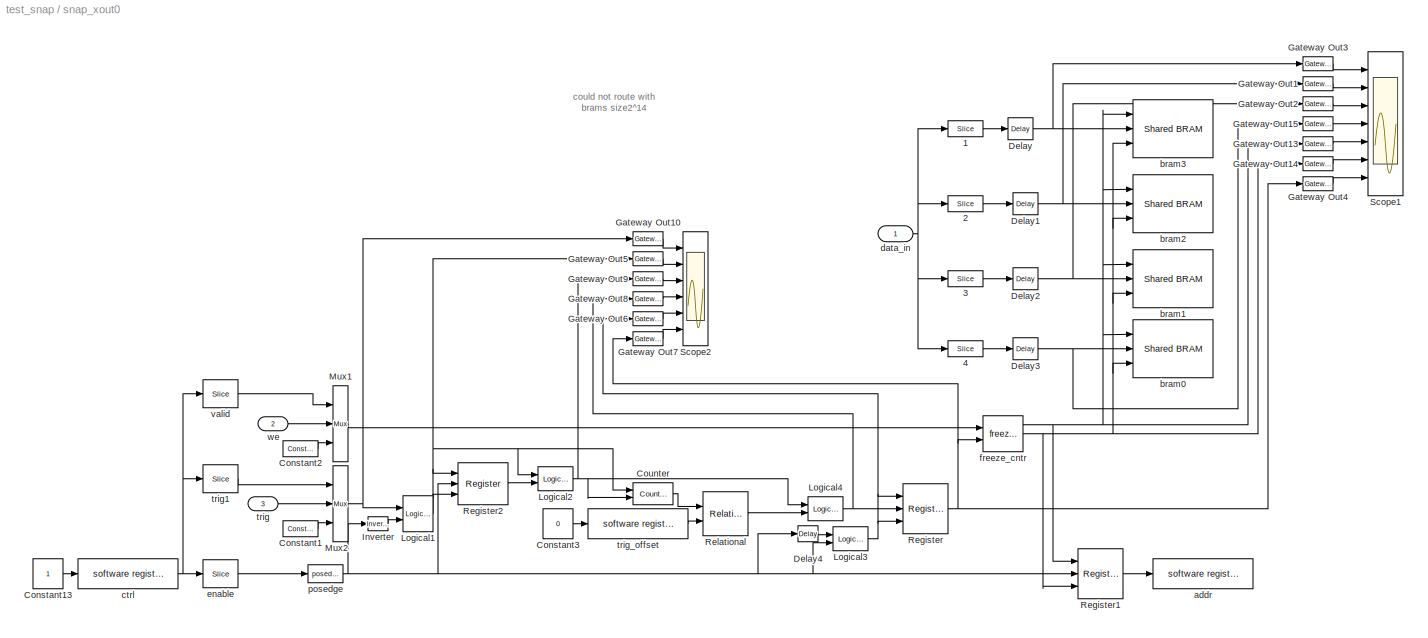
BLOCK [SubSystem] snap_xout0
  MaskEnableString = on
  MaskIconFrame = on
  MaskIconOpaque = on
  MaskIconRotate = none
  MaskIconUnits = autoscale
  MaskPromptString = Number of Samples (2^?)
  MaskStyleString = edit
  MaskToolTipString = on
  MaskTunableValueString = on
  MaskValueString = 13
  MaskVariables = nsamples=@1;
  MaskVisibilityString = on
  MinAlgLoopOccurrences = off
  Ports = [3]
  RTWSystemCode = Auto
  TreatAsAtomicUnit = off
BLOCK [Reference] snap_xout0/1  REF=xbsIndex_r3/Slice
  Ports = [1, 1]
  SourceBlock = xbsIndex_r3/Slice
  SourceType = Xilinx Slice Block
  base0 = LSB of Input
  base1 = LSB of Input
  bit0 = 96
  bit1 = 0
  boolean_output = on
  dbl_ovrd = off
  explicit_period = off
  mode = Lower Bit Location + Width
  nbits = 32
  period = 1
BLOCK [Reference] snap_xout0/2  REF=xbsIndex_r3/Slice
  Ports = [1, 1]
  SourceBlock = xbsIndex_r3/Slice
  SourceType = Xilinx Slice Block
  base0 = LSB of Input
  base1 = LSB of Input
  bit0 = 64
  bit1 = 0
  boolean_output = on
  dbl_ovrd = off
  explicit_period = off
  mode = Lower Bit Location + Width
  nbits = 32
  period = 1
BLOCK [Reference] snap_xout0/3  REF=xbsIndex_r3/Slice
  Ports = [1, 1]
  SourceBlock = xbsIndex_r3/Slice
  SourceType = Xilinx Slice Block
  base0 = LSB of Input
  base1 = LSB of Input
  bit0 = 32
  bit1 = 0
  boolean_output = on
  dbl_ovrd = off
  explicit_period = off
  mode = Lower Bit Location + Width
  nbits = 32
  period = 1
BLOCK [Reference] snap_xout0/4  REF=xbsIndex_r3/Slice
  Ports = [1, 1]
  SourceBlock = xbsIndex_r3/Slice
  SourceType = Xilinx Slice Block
  base0 = LSB of Input
  base1 = LSB of Input
  bit0 = 0
  bit1 = 0
  boolean_output = on
  dbl_ovrd = off
  explicit_period = off
  mode = Lower Bit Location + Width
  nbits = 32
  period = 1
BLOCK [Reference] snap_xout0/Constant1  REF=xbsIndex_r3/Constant
  Ports = [0, 1]
  SourceBlock = xbsIndex_r3/Constant
  SourceType = Xilinx Constant Block
  arith_type = Boolean
  bin_pt = 0
  carry = CIN
  const = 1
  dbl_ovrd = off
  equ = P=C
  explicit_period = on
  inp1 = P
  inp2 = PCIN>>17
  iostate = 0
  n_bits = 1
  opr = +
  opselect = C
  period = 1
BLOCK [Constant] snap_xout0/Constant13
BLOCK [Reference] snap_xout0/Constant2  REF=xbsIndex_r3/Constant
  Ports = [0, 1]
  SourceBlock = xbsIndex_r3/Constant
  SourceType = Xilinx Constant Block
  arith_type = Boolean
  bin_pt = 0
  carry = CIN
  const = 1
  dbl_ovrd = off
  equ = P=C
  explicit_period = on
  inp1 = P
  inp2 = PCIN>>17
  iostate = 0
  n_bits = 1
  opr = +
  opselect = C
  period = 1
BLOCK [Constant] snap_xout0/Constant3
  Value = 0
BLOCK [Reference] snap_xout0/Counter  REF=xbsIndex_r3/Counter
  Ports = [2, 1]
  SourceBlock = xbsIndex_r3/Counter
  SourceType = Xilinx Counter Block
  arith_type = Unsigned
  bin_pt = 0
  cnt_by_val = 1
  cnt_to = Inf
  cnt_type = Free Running
  dbl_ovrd = off
  en = on
  explicit_period = on
  gen_core = off
  load_pin = off
  n_bits = 128
  operation = Up
  period = 1
  rst = on
  show_param = off
  start_count = 1
  use_rpm = on
  xl_area = [0, 0, 0, 0, 0, 0, 0]
  xl_use_area = off
BLOCK [Reference] snap_xout0/Delay  REF=xbsIndex_r3/Delay
  Ports = [1, 1]
  SourceBlock = xbsIndex_r3/Delay
  SourceType = Xilinx Delay Block
  accept_only_valid = off
  dbl_ovrd = off
  en = off
  explicit_period = off
  init_zero = on
  latency = 1
  period = 1
  reg_retiming = off
  show_param = off
  xl_area = [0, 0, 0, 0, 0, 0, 0]
  xl_use_area = off
BLOCK [Reference] snap_xout0/Delay1  REF=xbsIndex_r3/Delay
  Ports = [1, 1]
  SourceBlock = xbsIndex_r3/Delay
  SourceType = Xilinx Delay Block
  accept_only_valid = off
  dbl_ovrd = off
  en = off
  explicit_period = off
  init_zero = on
  latency = 1
  period = 1
  reg_retiming = off
  show_param = off
  xl_area = [0, 0, 0, 0, 0, 0, 0]
  xl_use_area = off
BLOCK [Reference] snap_xout0/Delay2  REF=xbsIndex_r3/Delay
  Ports = [1, 1]
  SourceBlock = xbsIndex_r3/Delay
  SourceType = Xilinx Delay Block
  accept_only_valid = off
  dbl_ovrd = off
  en = off
  explicit_period = off
  init_zero = on
  latency = 1
  period = 1
  reg_retiming = off
  show_param = off
  xl_area = [0, 0, 0, 0, 0, 0, 0]
  xl_use_area = off
BLOCK [Reference] snap_xout0/Delay3  REF=xbsIndex_r3/Delay
  Ports = [1, 1]
  SourceBlock = xbsIndex_r3/Delay
  SourceType = Xilinx Delay Block
  accept_only_valid = off
  dbl_ovrd = off
  en = off
  explicit_period = off
  init_zero = on
  latency = 1
  period = 1
  reg_retiming = off
  show_param = off
  xl_area = [0, 0, 0, 0, 0, 0, 0]
  xl_use_area = off
BLOCK [Reference] snap_xout0/Delay4  REF=xbsIndex_r3/Delay
  Ports = [1, 1]
  SourceBlock = xbsIndex_r3/Delay
  SourceType = Xilinx Delay Block
  accept_only_valid = off
  dbl_ovrd = off
  en = off
  explicit_period = off
  init_zero = on
  latency = 1
  period = 1
  reg_retiming = off
  show_param = off
  xl_area = [0, 0, 0, 0, 0, 0, 0]
  xl_use_area = off
BLOCK [Reference] snap_xout0/Gateway Out1  REF=xbsIndex_r3/Gateway Out
  LOCs = {}
  Ports = [1, 1]
  SourceBlock = xbsIndex_r3/Gateway Out
  SourceType = Xilinx Gateway Out
  arith_type = Boolean
  bin_pt = 6
  hdl_port = off
  locs_specified = off
  nbits = 8
  needs_fixed_name = off
  output_type = Double
  overflow = Wrap
  quantization = Truncate
  show_param = off
  timing_constraint = None
  xl_area = [0, 0, 0, 0, 0, 0, 0]
  xl_use_area = off
BLOCK [Reference] snap_xout0/Gateway Out10  REF=xbsIndex_r3/Gateway Out
  LOCs = {}
  Ports = [1, 1]
  SourceBlock = xbsIndex_r3/Gateway Out
  SourceType = Xilinx Gateway Out
  arith_type = Boolean
  bin_pt = 6
  hdl_port = off
  locs_specified = off
  nbits = 8
  needs_fixed_name = off
  output_type = Double
  overflow = Wrap
  quantization = Truncate
  show_param = off
  timing_constraint = None
  xl_area = [0, 0, 0, 0, 0, 0, 0]
  xl_use_area = off
BLOCK [Reference] snap_xout0/Gateway Out13  REF=xbsIndex_r3/Gateway Out
  LOCs = {}
  Ports = [1, 1]
  SourceBlock = xbsIndex_r3/Gateway Out
  SourceType = Xilinx Gateway Out
  arith_type = Boolean
  bin_pt = 6
  hdl_port = off
  locs_specified = off
  nbits = 8
  needs_fixed_name = off
  output_type = Double
  overflow = Wrap
  quantization = Truncate
  show_param = off
  timing_constraint = None
  xl_area = [0, 0, 0, 0, 0, 0, 0]
  xl_use_area = off
BLOCK [Reference] snap_xout0/Gateway Out14  REF=xbsIndex_r3/Gateway Out
  LOCs = {}
  Ports = [1, 1]
  SourceBlock = xbsIndex_r3/Gateway Out
  SourceType = Xilinx Gateway Out
  arith_type = Boolean
  bin_pt = 6
  hdl_port = off
  locs_specified = off
  nbits = 8
  needs_fixed_name = off
  output_type = Double
  overflow = Wrap
  quantization = Truncate
  show_param = off
  timing_constraint = None
  xl_area = [0, 0, 0, 0, 0, 0, 0]
  xl_use_area = off
BLOCK [Reference] snap_xout0/Gateway Out15  REF=xbsIndex_r3/Gateway Out
  LOCs = {}
  Ports = [1, 1]
  SourceBlock = xbsIndex_r3/Gateway Out
  SourceType = Xilinx Gateway Out
  arith_type = Boolean
  bin_pt = 6
  hdl_port = off
  locs_specified = off
  nbits = 8
  needs_fixed_name = off
  output_type = Double
  overflow = Wrap
  quantization = Truncate
  show_param = off
  timing_constraint = None
  xl_area = [0, 0, 0, 0, 0, 0, 0]
  xl_use_area = off
BLOCK [Reference] snap_xout0/Gateway Out2  REF=xbsIndex_r3/Gateway Out
  LOCs = {}
  Ports = [1, 1]
  SourceBlock = xbsIndex_r3/Gateway Out
  SourceType = Xilinx Gateway Out
  arith_type = Boolean
  bin_pt = 6
  hdl_port = off
  locs_specified = off
  nbits = 8
  needs_fixed_name = off
  output_type = Double
  overflow = Wrap
  quantization = Truncate
  show_param = off
  timing_constraint = None
  xl_area = [0, 0, 0, 0, 0, 0, 0]
  xl_use_area = off
BLOCK [Reference] snap_xout0/Gateway Out3  REF=xbsIndex_r3/Gateway Out
  LOCs = {}
  Ports = [1, 1]
  SourceBlock = xbsIndex_r3/Gateway Out
  SourceType = Xilinx Gateway Out
  arith_type = Boolean
  bin_pt = 6
  hdl_port = off
  locs_specified = off
  nbits = 8
  needs_fixed_name = off
  output_type = Double
  overflow = Wrap
  quantization = Truncate
  show_param = off
  timing_constraint = None
  xl_area = [0, 0, 0, 0, 0, 0, 0]
  xl_use_area = off
BLOCK [Reference] snap_xout0/Gateway Out4  REF=xbsIndex_r3/Gateway Out
  LOCs = {}
  Ports = [1, 1]
  SourceBlock = xbsIndex_r3/Gateway Out
  SourceType = Xilinx Gateway Out
  arith_type = Boolean
  bin_pt = 6
  hdl_port = off
  locs_specified = off
  nbits = 8
  needs_fixed_name = off
  output_type = Double
  overflow = Wrap
  quantization = Truncate
  show_param = off
  timing_constraint = None
  xl_area = [0, 0, 0, 0, 0, 0, 0]
  xl_use_area = off
BLOCK [Reference] snap_xout0/Gateway Out5  REF=xbsIndex_r3/Gateway Out
  LOCs = {}
  Ports = [1, 1]
  SourceBlock = xbsIndex_r3/Gateway Out
  SourceType = Xilinx Gateway Out
  arith_type = Boolean
  bin_pt = 6
  hdl_port = off
  locs_specified = off
  nbits = 8
  needs_fixed_name = off
  output_type = Double
  overflow = Wrap
  quantization = Truncate
  show_param = off
  timing_constraint = None
  xl_area = [0, 0, 0, 0, 0, 0, 0]
  xl_use_area = off
BLOCK [Reference] snap_xout0/Gateway Out6  REF=xbsIndex_r3/Gateway Out
  LOCs = {}
  Ports = [1, 1]
  SourceBlock = xbsIndex_r3/Gateway Out
  SourceType = Xilinx Gateway Out
  arith_type = Boolean
  bin_pt = 6
  hdl_port = off
  locs_specified = off
  nbits = 8
  needs_fixed_name = off
  output_type = Double
  overflow = Wrap
  quantization = Truncate
  show_param = off
  timing_constraint = None
  xl_area = [0, 0, 0, 0, 0, 0, 0]
  xl_use_area = off
BLOCK [Reference] snap_xout0/Gateway Out7  REF=xbsIndex_r3/Gateway Out
  LOCs = {}
  Ports = [1, 1]
  SourceBlock = xbsIndex_r3/Gateway Out
  SourceType = Xilinx Gateway Out
  arith_type = Boolean
  bin_pt = 6
  hdl_port = off
  locs_specified = off
  nbits = 8
  needs_fixed_name = off
  output_type = Double
  overflow = Wrap
  quantization = Truncate
  show_param = off
  timing_constraint = None
  xl_area = [0, 0, 0, 0, 0, 0, 0]
  xl_use_area = off
BLOCK [Reference] snap_xout0/Gateway Out8  REF=xbsIndex_r3/Gateway Out
  LOCs = {}
  Ports = [1, 1]
  SourceBlock = xbsIndex_r3/Gateway Out
  SourceType = Xilinx Gateway Out
  arith_type = Boolean
  bin_pt = 6
  hdl_port = off
  locs_specified = off
  nbits = 8
  needs_fixed_name = off
  output_type = Double
  overflow = Wrap
  quantization = Truncate
  show_param = off
  timing_constraint = None
  xl_area = [0, 0, 0, 0, 0, 0, 0]
  xl_use_area = off
BLOCK [Reference] snap_xout0/Gateway Out9  REF=xbsIndex_r3/Gateway Out
  LOCs = {}
  Ports = [1, 1]
  SourceBlock = xbsIndex_r3/Gateway Out
  SourceType = Xilinx Gateway Out
  arith_type = Boolean
  bin_pt = 6
  hdl_port = off
  locs_specified = off
  nbits = 8
  needs_fixed_name = off
  output_type = Double
  overflow = Wrap
  quantization = Truncate
  show_param = off
  timing_constraint = None
  xl_area = [0, 0, 0, 0, 0, 0, 0]
  xl_use_area = off
BLOCK [Reference] snap_xout0/Inverter  REF=xbsIndex_r3/Inverter
  Ports = [1, 1]
  SourceBlock = xbsIndex_r3/Inverter
  SourceType = Xilinx Inverter
  dbl_ovrd = off
  en = off
  explicit_period = off
  latency = 0
  period = 1
  show_param = off
  xl_area = [0, 0, 0, 0, 0, 0, 0]
  xl_use_area = off
BLOCK [Reference] snap_xout0/Logical1  REF=xbsIndex_r3/Logical
  Ports = [2, 1]
  SourceBlock = xbsIndex_r3/Logical
  SourceType = Xilinx Logical Block
  align_bp = on
  arith_type = Unsigned
  bin_pt = 2
  dbl_ovrd = off
  en = off
  explicit_period = off
  inputs = 2
  latency = 0
  logical_function = AND
  n_bits = 8
  period = 1
  precision = Full
  show_param = off
  xl_area = [0, 0, 0, 0, 0, 0, 0]
  xl_use_area = off
BLOCK [Reference] snap_xout0/Logical2  REF=xbsIndex_r3/Logical
  Ports = [2, 1]
  SourceBlock = xbsIndex_r3/Logical
  SourceType = Xilinx Logical Block
  align_bp = on
  arith_type = Unsigned
  bin_pt = 2
  dbl_ovrd = off
  en = off
  explicit_period = off
  inputs = 2
  latency = 0
  logical_function = OR
  n_bits = 8
  period = 1
  precision = Full
  show_param = off
  xl_area = [0, 0, 0, 0, 0, 0, 0]
  xl_use_area = off
BLOCK [Reference] snap_xout0/Logical3  REF=xbsIndex_r3/Logical
  Ports = [2, 1]
  SourceBlock = xbsIndex_r3/Logical
  SourceType = Xilinx Logical Block
  align_bp = on
  arith_type = Unsigned
  bin_pt = 2
  dbl_ovrd = off
  en = off
  explicit_period = off
  inputs = 2
  latency = 0
  logical_function = OR
  n_bits = 8
  period = 1
  precision = Full
  show_param = off
  xl_area = [0, 0, 0, 0, 0, 0, 0]
  xl_use_area = off
BLOCK [Reference] snap_xout0/Logical4  REF=xbsIndex_r3/Logical
  Ports = [2, 1]
  SourceBlock = xbsIndex_r3/Logical
  SourceType = Xilinx Logical Block
  align_bp = on
  arith_type = Unsigned
  bin_pt = 2
  dbl_ovrd = off
  en = off
  explicit_period = off
  inputs = 2
  latency = 0
  logical_function = AND
  n_bits = 8
  period = 1
  precision = Full
  show_param = off
  xl_area = [0, 0, 0, 0, 0, 0, 0]
  xl_use_area = off
BLOCK [Reference] snap_xout0/Mux1  REF=xbsIndex_r3/Mux
  Ports = [3, 1]
  SourceBlock = xbsIndex_r3/Mux
  SourceType = Xilinx Multiplexer Block
  arith_type = Signed  (2's comp)
  bin_pt = 2
  dbl_ovrd = off
  en = off
  explicit_period = off
  gen_core = off
  inputs = 2
  latency = 0
  mux_type = off
  n_bits = 8
  overflow = Wrap
  period = 1
  precision = Full
  quantization = Truncate
  show_param = off
  use_rpm = off
  xl_area = [0, 0, 0, 0, 0, 0, 0]
  xl_use_area = off
BLOCK [Reference] snap_xout0/Mux2  REF=xbsIndex_r3/Mux
  Ports = [3, 1]
  SourceBlock = xbsIndex_r3/Mux
  SourceType = Xilinx Multiplexer Block
  arith_type = Signed  (2's comp)
  bin_pt = 2
  dbl_ovrd = off
  en = off
  explicit_period = off
  gen_core = off
  inputs = 2
  latency = 0
  mux_type = off
  n_bits = 8
  overflow = Wrap
  period = 1
  precision = Full
  quantization = Truncate
  show_param = off
  use_rpm = off
  xl_area = [0, 0, 0, 0, 0, 0, 0]
  xl_use_area = off
BLOCK [Reference] snap_xout0/Register  REF=xbsIndex_r3/Register
  Ports = [3, 1]
  SourceBlock = xbsIndex_r3/Register
  SourceType = Xilinx Register Block
  dbl_ovrd = off
  en = on
  explicit_period = off
  init = 0
  out_en = off
  period = 1
  reg_only_valid = off
  rst = on
  show_param = off
  xl_area = [0, 0, 0, 0, 0, 0, 0]
  xl_use_area = off
BLOCK [Reference] snap_xout0/Register1  REF=xbsIndex_r3/Register
  Ports = [3, 1]
  SourceBlock = xbsIndex_r3/Register
  SourceType = Xilinx Register Block
  dbl_ovrd = off
  en = on
  explicit_period = off
  init = 0
  out_en = off
  period = 1
  reg_only_valid = off
  rst = on
  show_param = off
  xl_area = [0, 0, 0, 0, 0, 0, 0]
  xl_use_area = off
BLOCK [Reference] snap_xout0/Register2  REF=xbsIndex_r3/Register
  Ports = [3, 1]
  SourceBlock = xbsIndex_r3/Register
  SourceType = Xilinx Register Block
  dbl_ovrd = off
  en = on
  explicit_period = off
  init = 0
  out_en = off
  period = 1
  reg_only_valid = off
  rst = on
  show_param = off
  xl_area = [0, 0, 0, 0, 0, 0, 0]
  xl_use_area = off
BLOCK [Reference] snap_xout0/Relational  REF=xbsIndex_r3/Relational
  Ports = [2, 1]
  SourceBlock = xbsIndex_r3/Relational
  SourceType = Xilinx Relational Block
  dbl_ovrd = off
  en = off
  explicit_period = off
  latency = 0
  mode = a>=b
  period = 1
  show_param = off
  xl_area = [0, 0, 0, 0, 0, 0, 0]
  xl_use_area = off
BLOCK [Scope] snap_xout0/Scope1
  DataFormat = StructureWithTime
  LimitDataPoints = off
  NumInputPorts = 7
  Ports = [7]
  SaveName = ScopeData1
  YMax = 3.00648e+008~110~1~5~5~5~5
  YMin = 2.72014e+008~0~0~-5~-5~-5~-5
  ZoomMode = xonly
BLOCK [Scope] snap_xout0/Scope2
  DataFormat = StructureWithTime
  LimitDataPoints = off
  NumInputPorts = 6
  Ports = [6]
  SaveName = ScopeData2
  YMax = 3.00648e+008~110~1~5~5~5
  YMin = 2.72014e+008~0~0~-5~-5~-5
  ZoomMode = xonly
BLOCK [Reference] snap_xout0/addr  REF=xps_library/software register  (lib defined in mdl_00b5cec29cd0, mdl_02ab6ecaa3d1, +5 more)
  Ports = [1, 1]
  ShowPortLabels = on
  SourceBlock = xps_library/software register
  Tag = xps:sw_reg
  arith_type = Unsigned
  bin_pt = 0
  bitwidth = 32
  gw_name = test_snap_snap_xout0_addr_user_data_in
  io_dir = To Processor
  sample_period = 1
BLOCK [Reference] snap_xout0/bram0  REF=xps_library/Shared BRAM  (lib defined in mdl_00b5cec29cd0, mdl_02ab6ecaa3d1, +5 more)
  Ports = [3, 1]
  ShowPortLabels = on
  SourceBlock = xps_library/Shared BRAM
  Tag = xps:bram
  addr_width = nsamples
  arith_type = Unsigned
  data_bin_pt = 0
  data_width = 32
  init_vals = 0
  sample_rate = 1
BLOCK [Reference] snap_xout0/bram1  REF=xps_library/Shared BRAM  (lib defined in mdl_00b5cec29cd0, mdl_02ab6ecaa3d1, +5 more)
  Ports = [3, 1]
  ShowPortLabels = on
  SourceBlock = xps_library/Shared BRAM
  Tag = xps:bram
  addr_width = nsamples
  arith_type = Unsigned
  data_bin_pt = 0
  data_width = 32
  init_vals = 0
  sample_rate = 1
BLOCK [Reference] snap_xout0/bram2  REF=xps_library/Shared BRAM  (lib defined in mdl_00b5cec29cd0, mdl_02ab6ecaa3d1, +5 more)
  Ports = [3, 1]
  ShowPortLabels = on
  SourceBlock = xps_library/Shared BRAM
  Tag = xps:bram
  addr_width = nsamples
  arith_type = Unsigned
  data_bin_pt = 0
  data_width = 32
  init_vals = 0
  sample_rate = 1
BLOCK [Reference] snap_xout0/bram3  REF=xps_library/Shared BRAM  (lib defined in mdl_00b5cec29cd0, mdl_02ab6ecaa3d1, +5 more)
  Ports = [3, 1]
  ShowPortLabels = on
  SourceBlock = xps_library/Shared BRAM
  Tag = xps:bram
  addr_width = nsamples
  arith_type = Unsigned
  data_bin_pt = 0
  data_width = 32
  init_vals = 0
  sample_rate = 1
BLOCK [Reference] snap_xout0/ctrl  REF=xps_library/software register  (lib defined in mdl_00b5cec29cd0, mdl_02ab6ecaa3d1, +5 more)
  Ports = [1, 1]
  ShowPortLabels = on
  SourceBlock = xps_library/software register
  Tag = xps:sw_reg
  arith_type = Unsigned
  bin_pt = 0
  bitwidth = 32
  gw_name = test_snap_snap_xout0_ctrl_user_data_out
  io_dir = From Processor
  sample_period = 1
BLOCK [Inport] snap_xout0/data_in
  IconDisplay = Port number
  LatchInput = off
  Port = 1
BLOCK [Reference] snap_xout0/enable  REF=xbsIndex_r3/Slice
  Ports = [1, 1]
  SourceBlock = xbsIndex_r3/Slice
  SourceType = Xilinx Slice Block
  base0 = LSB of Input
  base1 = LSB of Input
  bit0 = 0
  bit1 = 0
  boolean_output = on
  dbl_ovrd = off
  explicit_period = off
  mode = Lower Bit Location + Width
  nbits = 1
  period = 1
BLOCK [Reference] snap_xout0/freeze_cntr  REF=casper_library/Misc/freeze_cntr  (lib defined in mdl_138b2fc3435f, mdl_4ed325b712b3, +2 more)
  CounterBits = nsamples
  Ports = [2, 3]
  ShowPortLabels = on
  SourceBlock = casper_library/Misc/freeze_cntr
  SourceType = freeze_cntr
BLOCK [Reference] snap_xout0/posedge  REF=casper_library/Misc/posedge  (lib defined in mdl_138b2fc3435f, mdl_4ed325b712b3, +2 more)
  Ports = [1, 1]
  ShowPortLabels = on
  SourceBlock = casper_library/Misc/posedge
  SourceType = posedge
  Tag = Rising Edge Detector
BLOCK [Inport] snap_xout0/trig
  IconDisplay = Port number
  LatchInput = off
  Port = 3
BLOCK [Reference] snap_xout0/trig1  REF=xbsIndex_r3/Slice
  Ports = [1, 1]
  SourceBlock = xbsIndex_r3/Slice
  SourceType = Xilinx Slice Block
  base0 = LSB of Input
  base1 = LSB of Input
  bit0 = 1
  bit1 = 0
  boolean_output = on
  dbl_ovrd = off
  explicit_period = off
  mode = Lower Bit Location + Width
  nbits = 1
  period = 1
BLOCK [Reference] snap_xout0/trig_offset  REF=xps_library/software register  (lib defined in mdl_00b5cec29cd0, mdl_02ab6ecaa3d1, +5 more)
  Ports = [1, 1]
  ShowPortLabels = on
  SourceBlock = xps_library/software register
  Tag = xps:sw_reg
  arith_type = Unsigned
  bin_pt = 0
  bitwidth = 32
  gw_name = test_snap_snap_xout0_trig_offset_user_data_out
  io_dir = From Processor
  sample_period = 1
BLOCK [Reference] snap_xout0/valid  REF=xbsIndex_r3/Slice
  Ports = [1, 1]
  SourceBlock = xbsIndex_r3/Slice
  SourceType = Xilinx Slice Block
  base0 = LSB of Input
  base1 = LSB of Input
  bit0 = 2
  bit1 = 0
  boolean_output = on
  dbl_ovrd = off
  explicit_period = off
  mode = Lower Bit Location + Width
  nbits = 1
  period = 1
BLOCK [Inport] snap_xout0/we
  IconDisplay = Port number
  LatchInput = off
  Port = 2
BLOCK [Reference] trig  REF=xps_library/software register  (lib defined in mdl_00b5cec29cd0, mdl_02ab6ecaa3d1, +5 more)
  Ports = [1, 1]
  ShowPortLabels = on
  SourceBlock = xps_library/software register
  Tag = xps:sw_reg
  arith_type = Unsigned
  bin_pt = 0
  bitwidth = 32
  gw_name = test_snap_trig_user_data_out
  io_dir = From Processor
  sample_period = 1
ANNOTATION snap_descramble0: could not route with \nbrams size2^14
ANNOTATION snap_xout0: could not route with \nbrams size2^14
NET Counter:1 -> Gateway Out3:1, snap:1, snap_circ:1, snap_descramble0:1, snap_xout0:1
LINE Delay:1 -> snap_circ:4
LINE Gateway Out1:1 -> Scope1:2
LINE Gateway Out2:1 -> Scope1:3
LINE Gateway Out3:1 -> Scope1:1
LINE Pulse\nGenerator1:1 -> trig:1
LINE Pulse\nGenerator:1 -> en:1
LINE en:1 -> enable:1
LINE enable1:1 -> posedge1:1
NET enable:1 -> Counter:1, Gateway Out1:1, snap:3, snap_circ:2, snap_descramble0:2, snap_xout0:2
NET posedge1:1 -> Delay:1, Gateway Out2:1, snap:2, snap_circ:3, snap_descramble0:3, snap_xout0:3
LINE snap_circ/Constant1:1 -> snap_circ/Mux2:3
LINE snap_circ/Constant2:1 -> snap_circ/Mux1:3
LINE snap_circ/Constant3:1 -> snap_circ/trig_offset:1
LINE snap_circ/Constant4:1 -> snap_circ/Sum:2
LINE snap_circ/Constant:1 -> snap_circ/Relational1:2
LINE snap_circ/Counter1:1 -> snap_circ/wr_since_trig:1
NET snap_circ/Counter3:1 -> snap_circ/Delay11:1, snap_circ/Delay8:1, snap_circ/Gateway Out4:1, snap_circ/Register1:1, snap_circ/Relational1:1
LINE snap_circ/Counter:1 -> snap_circ/Delay7:1
LINE snap_circ/Delay10:1 -> snap_circ/bram_msb:3
LINE snap_circ/Delay11:1 -> snap_circ/bram_lsb:1
LINE snap_circ/Delay12:1 -> snap_circ/bram_lsb:2
LINE snap_circ/Delay13:1 -> snap_circ/bram_lsb:3
LINE snap_circ/Delay14:1 -> snap_circ/addr:1
NET snap_circ/Delay15:1 -> snap_circ/Gateway Out13:1, snap_circ/Register3:1, snap_circ/Register3:3
LINE snap_circ/Delay16:1 -> snap_circ/posedge2:1
LINE snap_circ/Delay1:1 -> snap_circ/Delay9:1
LINE snap_circ/Delay2:1 -> snap_circ/Logical3:2
LINE snap_circ/Delay3:1 -> snap_circ/Delay12:1
LINE snap_circ/Delay4:1 -> snap_circ/Logical3:1
LINE snap_circ/Delay5:1 -> snap_circ/Logical6:1
LINE snap_circ/Delay6:1 -> snap_circ/Logical4:1
LINE snap_circ/Delay7:1 -> snap_circ/Relational:1
LINE snap_circ/Delay8:1 -> snap_circ/bram_msb:1
LINE snap_circ/Delay9:1 -> snap_circ/bram_msb:2
LINE snap_circ/Gateway Out10:1 -> snap_circ/tig_delay_debug:1
LINE snap_circ/Gateway Out11:1 -> snap_circ/stop_debug:5
LINE snap_circ/Gateway Out12:1 -> snap_circ/stop_debug:6
LINE snap_circ/Gateway Out13:1 -> snap_circ/stop_debug:4
LINE snap_circ/Gateway Out14:1 -> snap_circ/stop_debug:3
LINE snap_circ/Gateway Out1:1 -> snap_circ/tig_delay_debug:7
LINE snap_circ/Gateway Out2:1 -> snap_circ/stop_debug:7
LINE snap_circ/Gateway Out3:1 -> snap_circ/stop_debug:1
LINE snap_circ/Gateway Out4:1 -> snap_circ/stop_debug:2
LINE snap_circ/Gateway Out5:1 -> snap_circ/tig_delay_debug:2
LINE snap_circ/Gateway Out6:1 -> snap_circ/tig_delay_debug:5
LINE snap_circ/Gateway Out7:1 -> snap_circ/tig_delay_debug:6
LINE snap_circ/Gateway Out8:1 -> snap_circ/tig_delay_debug:4
LINE snap_circ/Gateway Out9:1 -> snap_circ/tig_delay_debug:3
LINE snap_circ/Inverter1:1 -> snap_circ/Logical7:1
LINE snap_circ/Inverter2:1 -> snap_circ/Logical6:2
LINE snap_circ/Inverter3:1 -> snap_circ/Logical9:1
LINE snap_circ/Inverter:1 -> snap_circ/Logical1:2
NET snap_circ/Logical10:1 -> snap_circ/Counter3:1, snap_circ/Gateway Out11:1
NET snap_circ/Logical1:1 -> snap_circ/Counter:1, snap_circ/Gateway Out5:1, snap_circ/Logical2:1, snap_circ/Register2:1, snap_circ/Register2:3
NET snap_circ/Logical2:1 -> snap_circ/Delay6:1, snap_circ/Gateway Out9:1
NET snap_circ/Logical3:1 -> snap_circ/Gateway Out6:1, snap_circ/Register:1, snap_circ/Register:3
NET snap_circ/Logical4:1 -> snap_circ/Gateway Out8:1, snap_circ/Register:2
NET snap_circ/Logical5:1 -> snap_circ/Counter1:2, snap_circ/Delay10:1, snap_circ/Delay13:1, snap_circ/Gateway Out14:1, snap_circ/Gateway Out1:1, snap_circ/Register1:3
NET snap_circ/Logical6:1 -> snap_circ/Counter3:2, snap_circ/Gateway Out12:1, snap_circ/Logical5:1
LINE snap_circ/Logical7:1 -> snap_circ/Logical10:1
LINE snap_circ/Logical9:1 -> snap_circ/Logical10:2
NET snap_circ/Mux1:1 -> snap_circ/Counter:2, snap_circ/Delay5:1
NET snap_circ/Mux2:1 -> snap_circ/Gateway Out10:1, snap_circ/Logical1:1
LINE snap_circ/Pulse\nGenerator1:1 -> snap_circ/Sum:1
LINE snap_circ/Register1:1 -> snap_circ/Delay14:1
NET snap_circ/Register2:1 -> snap_circ/Delay16:1, snap_circ/Logical2:2
LINE snap_circ/Register3:1 -> snap_circ/Inverter1:1
NET snap_circ/Register:1 -> snap_circ/Gateway Out7:1, snap_circ/Logical9:2
NET snap_circ/Reinterpret:1 -> snap_circ/lsb_sel:1, snap_circ/msb_sel:1
NET snap_circ/Relational1:1 -> snap_circ/Gateway Out2:1, snap_circ/Inverter2:1, snap_circ/Logical7:3, snap_circ/posedge1:1
LINE snap_circ/Relational:1 -> snap_circ/Logical4:2
LINE snap_circ/Sum:1 -> snap_circ/ctrl:1
NET snap_circ/circ_cap:1 -> snap_circ/Inverter3:1, snap_circ/Logical7:2
NET snap_circ/ctrl:1 -> snap_circ/circ_cap:1, snap_circ/enable:1, snap_circ/trig1:1, snap_circ/valid:1
NET snap_circ/data_in:1 -> snap_circ/Gateway Out3:1, snap_circ/Reinterpret:1
LINE snap_circ/enable:1 -> snap_circ/posedge:1
LINE snap_circ/lsb_sel:1 -> snap_circ/Delay3:1
LINE snap_circ/msb_sel:1 -> snap_circ/Delay1:1
LINE snap_circ/posedge1:1 -> snap_circ/Logical5:2
LINE snap_circ/posedge2:1 -> snap_circ/Counter1:1
NET snap_circ/posedge:1 -> snap_circ/Delay2:1, snap_circ/Delay4:1, snap_circ/Inverter:1, snap_circ/Logical3:3, snap_circ/Register1:2, snap_circ/Register2:2, snap_circ/Register3:2
LINE snap_circ/stop:1 -> snap_circ/Delay15:1
LINE snap_circ/trig1:1 -> snap_circ/Mux2:1
LINE snap_circ/trig:1 -> snap_circ/Mux2:2
LINE snap_circ/trig_offset:1 -> snap_circ/Relational:2
LINE snap_circ/valid:1 -> snap_circ/Mux1:1
LINE snap_circ/we:1 -> snap_circ/Mux1:2
LINE snap_descramble0/Constant1:1 -> snap_descramble0/Mux2:3
LINE snap_descramble0/Constant2:1 -> snap_descramble0/Mux1:3
LINE snap_descramble0/Constant3:1 -> snap_descramble0/trig_offset:1
LINE snap_descramble0/Counter:1 -> snap_descramble0/Delay7:1
LINE snap_descramble0/Delay1:1 -> snap_descramble0/bram0:2
LINE snap_descramble0/Delay2:1 -> snap_descramble0/Logical3:2
LINE snap_descramble0/Delay3:1 -> snap_descramble0/Delay1:1
LINE snap_descramble0/Delay4:1 -> snap_descramble0/Logical3:1
LINE snap_descramble0/Delay5:1 -> snap_descramble0/freeze_cntr:1
LINE snap_descramble0/Delay6:1 -> snap_descramble0/Logical4:1
LINE snap_descramble0/Delay7:1 -> snap_descramble0/Relational:1
LINE snap_descramble0/Gateway Out10:1 -> snap_descramble0/Scope2:1
LINE snap_descramble0/Gateway Out1:1 -> snap_descramble0/Scope2:7
LINE snap_descramble0/Gateway Out5:1 -> snap_descramble0/Scope2:2
LINE snap_descramble0/Gateway Out6:1 -> snap_descramble0/Scope2:5
LINE snap_descramble0/Gateway Out7:1 -> snap_descramble0/Scope2:6
LINE snap_descramble0/Gateway Out8:1 -> snap_descramble0/Scope2:4
LINE snap_descramble0/Gateway Out9:1 -> snap_descramble0/Scope2:3
LINE snap_descramble0/Inverter:1 -> snap_descramble0/Logical1:2
NET snap_descramble0/Logical1:1 -> snap_descramble0/Counter:1, snap_descramble0/Gateway Out5:1, snap_descramble0/Logical2:1, snap_descramble0/Register2:1, snap_descramble0/Register2:3
NET snap_descramble0/Logical2:1 -> snap_descramble0/Delay6:1, snap_descramble0/Gateway Out9:1
NET snap_descramble0/Logical3:1 -> snap_descramble0/Gateway Out6:1, snap_descramble0/Register:1, snap_descramble0/Register:3
NET snap_descramble0/Logical4:1 -> snap_descramble0/Gateway Out8:1, snap_descramble0/Register:2
NET snap_descramble0/Mux1:1 -> snap_descramble0/Counter:2, snap_descramble0/Delay5:1
NET snap_descramble0/Mux2:1 -> snap_descramble0/Gateway Out10:1, snap_descramble0/Logical1:1
LINE snap_descramble0/Pulse\nGenerator1:1 -> snap_descramble0/ctrl:1
LINE snap_descramble0/Register1:1 -> snap_descramble0/addr:1
LINE snap_descramble0/Register2:1 -> snap_descramble0/Logical2:2
NET snap_descramble0/Register:1 -> snap_descramble0/Gateway Out7:1, snap_descramble0/freeze_cntr:2
LINE snap_descramble0/Relational:1 -> snap_descramble0/Logical4:2
NET snap_descramble0/ctrl:1 -> snap_descramble0/enable:1, snap_descramble0/trig1:1, snap_descramble0/valid:1
LINE snap_descramble0/data_in:1 -> snap_descramble0/Delay3:1
LINE snap_descramble0/enable:1 -> snap_descramble0/posedge:1
NET snap_descramble0/freeze_cntr:1 -> snap_descramble0/Register1:1, snap_descramble0/bram0:1
NET snap_descramble0/freeze_cntr:2 -> snap_descramble0/Gateway Out1:1, snap_descramble0/Register1:3, snap_descramble0/bram0:3
NET snap_descramble0/posedge:1 -> snap_descramble0/Delay2:1, snap_descramble0/Delay4:1, snap_descramble0/Inverter:1, snap_descramble0/Logical3:3, snap_descramble0/Register1:2, snap_descramble0/Register2:2
LINE snap_descramble0/trig1:1 -> snap_descramble0/Mux2:1
LINE snap_descramble0/trig:1 -> snap_descramble0/Mux2:2
LINE snap_descramble0/trig_offset:1 -> snap_descramble0/Relational:2
LINE snap_descramble0/valid:1 -> snap_descramble0/Mux1:1
LINE snap_descramble0/we:1 -> snap_descramble0/Mux1:2
LINE snap_xout0/1:1 -> snap_xout0/Delay:1
LINE snap_xout0/2:1 -> snap_xout0/Delay1:1
LINE snap_xout0/3:1 -> snap_xout0/Delay2:1
LINE snap_xout0/4:1 -> snap_xout0/Delay3:1
LINE snap_xout0/Constant13:1 -> snap_xout0/ctrl:1
LINE snap_xout0/Constant1:1 -> snap_xout0/Mux2:3
LINE snap_xout0/Constant2:1 -> snap_xout0/Mux1:3
LINE snap_xout0/Constant3:1 -> snap_xout0/trig_offset:1
LINE snap_xout0/Counter:1 -> snap_xout0/Relational:1
NET snap_xout0/Delay1:1 -> snap_xout0/Gateway Out1:1, snap_xout0/bram2:2
NET snap_xout0/Delay2:1 -> snap_xout0/Gateway Out2:1, snap_xout0/bram1:2
NET snap_xout0/Delay3:1 -> snap_xout0/Gateway Out15:1, snap_xout0/bram0:2
LINE snap_xout0/Delay4:1 -> snap_xout0/Logical3:1
NET snap_xout0/Delay:1 -> snap_xout0/Gateway Out3:1, snap_xout0/bram3:2
LINE snap_xout0/Gateway Out10:1 -> snap_xout0/Scope2:1
LINE snap_xout0/Gateway Out13:1 -> snap_xout0/Scope1:5
LINE snap_xout0/Gateway Out14:1 -> snap_xout0/Scope1:6
LINE snap_xout0/Gateway Out15:1 -> snap_xout0/Scope1:4
LINE snap_xout0/Gateway Out1:1 -> snap_xout0/Scope1:2
LINE snap_xout0/Gateway Out2:1 -> snap_xout0/Scope1:3
LINE snap_xout0/Gateway Out3:1 -> snap_xout0/Scope1:1
LINE snap_xout0/Gateway Out4:1 -> snap_xout0/Scope1:7
LINE snap_xout0/Gateway Out5:1 -> snap_xout0/Scope2:2
LINE snap_xout0/Gateway Out6:1 -> snap_xout0/Scope2:5
LINE snap_xout0/Gateway Out7:1 -> snap_xout0/Scope2:6
LINE snap_xout0/Gateway Out8:1 -> snap_xout0/Scope2:4
LINE snap_xout0/Gateway Out9:1 -> snap_xout0/Scope2:3
LINE snap_xout0/Inverter:1 -> snap_xout0/Logical1:2
NET snap_xout0/Logical1:1 -> snap_xout0/Counter:1, snap_xout0/Gateway Out5:1, snap_xout0/Logical2:1, snap_xout0/Register2:1, snap_xout0/Register2:3
NET snap_xout0/Logical2:1 -> snap_xout0/Counter:2, snap_xout0/Gateway Out9:1, snap_xout0/Logical4:1
NET snap_xout0/Logical3:1 -> snap_xout0/Gateway Out6:1, snap_xout0/Register:1, snap_xout0/Register:3
NET snap_xout0/Logical4:1 -> snap_xout0/Gateway Out8:1, snap_xout0/Register:2
LINE snap_xout0/Mux1:1 -> snap_xout0/freeze_cntr:1
NET snap_xout0/Mux2:1 -> snap_xout0/Gateway Out10:1, snap_xout0/Logical1:1
LINE snap_xout0/Register1:1 -> snap_xout0/addr:1
LINE snap_xout0/Register2:1 -> snap_xout0/Logical2:2
NET snap_xout0/Register:1 -> snap_xout0/Gateway Out4:1, snap_xout0/Gateway Out7:1, snap_xout0/freeze_cntr:2
LINE snap_xout0/Relational:1 -> snap_xout0/Logical4:2
NET snap_xout0/ctrl:1 -> snap_xout0/enable:1, snap_xout0/trig1:1, snap_xout0/valid:1
NET snap_xout0/data_in:1 -> snap_xout0/1:1, snap_xout0/2:1, snap_xout0/3:1, snap_xout0/4:1
LINE snap_xout0/enable:1 -> snap_xout0/posedge:1
NET snap_xout0/freeze_cntr:1 -> snap_xout0/Gateway Out13:1, snap_xout0/Register1:1, snap_xout0/bram0:1, snap_xout0/bram1:1, snap_xout0/bram2:1, snap_xout0/bram3:1
NET snap_xout0/freeze_cntr:2 -> snap_xout0/Gateway Out14:1, snap_xout0/Register1:3, snap_xout0/bram0:3, snap_xout0/bram1:3, snap_xout0/bram2:3, snap_xout0/bram3:3
NET snap_xout0/posedge:1 -> snap_xout0/Delay4:1, snap_xout0/Inverter:1, snap_xout0/Logical3:2, snap_xout0/Register1:2, snap_xout0/Register2:2
LINE snap_xout0/trig1:1 -> snap_xout0/Mux2:1
LINE snap_xout0/trig:1 -> snap_xout0/Mux2:2
LINE snap_xout0/trig_offset:1 -> snap_xout0/Relational:2
LINE snap_xout0/valid:1 -> snap_xout0/Mux1:1
LINE snap_xout0/we:1 -> snap_xout0/Mux1:2
LINE trig:1 -> enable1:1
note: NET lines group one-source signal fan-out (src -> all destinations, sorted); 1:1 wires keep LINE
